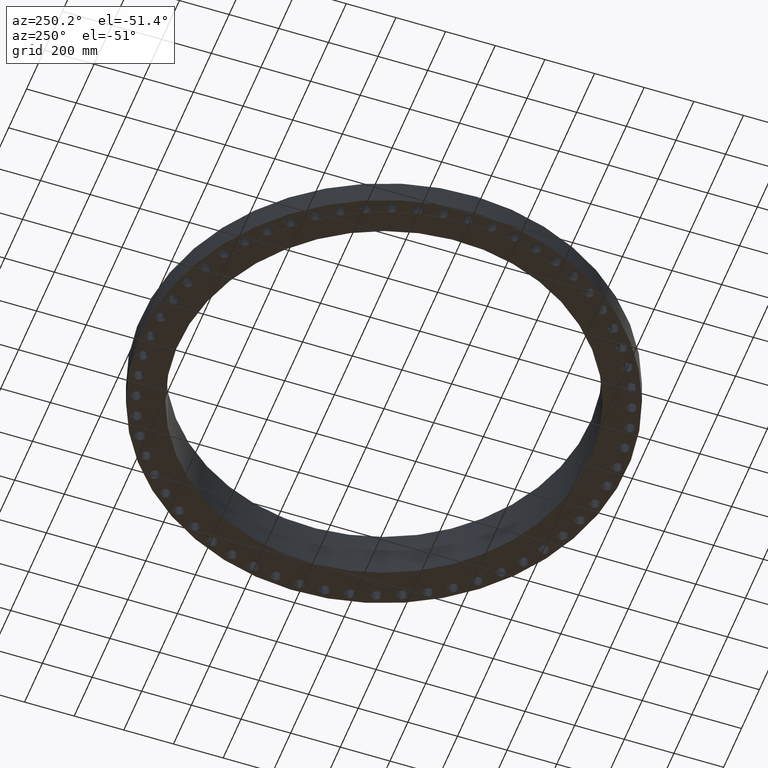
[diagram: clean part render]
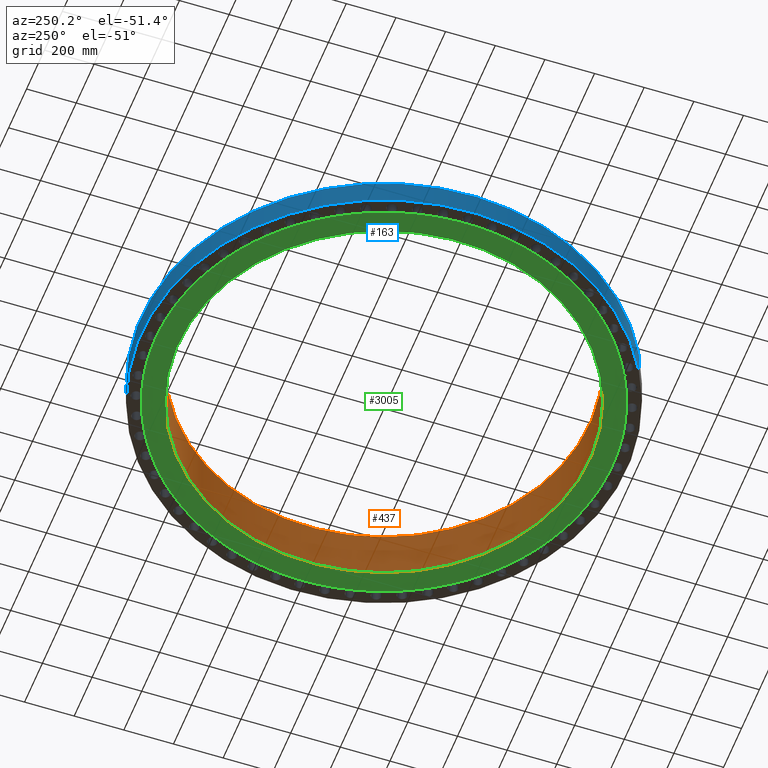
[diagram: same view with three faces highlighted in distinct colors, each labeled with its STEP entity id]
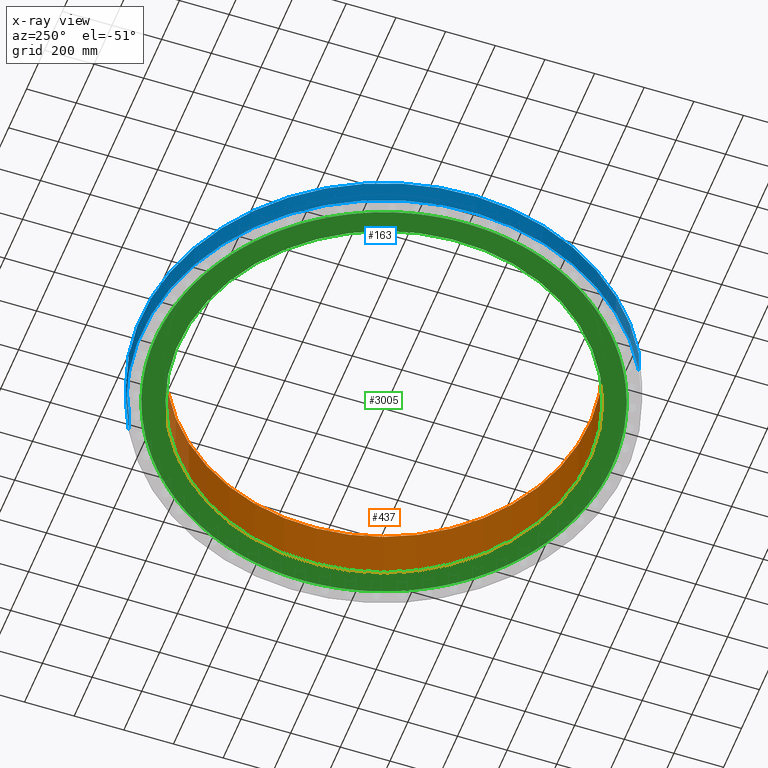
[diagram: x-ray of the same camera — body ghosted, the three highlighted faces saturated]
A machine part, auxiliary view with three faces highlighted in distinct colors.
The next image is the same camera in x-ray (body ghosted, the three faces saturated) — at least one of them is partly hidden behind the body in this view.
Their STEP definitions:

[orange] entity #437 — the highlighted cylindrical surface (partial cylindrical patch) has radius 828.675 mm, axis along (0, 0, -1).
#387=AXIS2_PLACEMENT_3D('Circle Axis2P3D',#385,#386,$) ;
#398=AXIS2_PLACEMENT_3D('Cylinder Axis2P3D',#395,#396,#397) ;
#428=AXIS2_PLACEMENT_3D('Circle Axis2P3D',#426,#427,$) ;
#380=CARTESIAN_POINT('Vertex',(-15.641258197,-28.6311310818,8.50000000003)) ;
#382=CARTESIAN_POINT('Vertex',(15.641258197,28.6311310818,8.50000000003)) ;
#385=CARTESIAN_POINT('Axis2P3D Location',(-1.34275792585E-014,-4.47585975282E-015,8.50000000003)) ;
#395=CARTESIAN_POINT('Axis2P3D Location',(0.,0.,4.26875000002)) ;
#400=CARTESIAN_POINT('Line Origine',(-15.641258197,-28.6311310818,4.21875000002)) ;
#404=CARTESIAN_POINT('Vertex',(-15.641258197,-28.6311310818,-0.0625000000003)) ;
#411=CARTESIAN_POINT('Vertex',(15.641258197,28.6311310818,-0.0625000000003)) ;
#414=CARTESIAN_POINT('Line Origine',(15.641258197,28.6311310818,4.21875000002)) ;
#426=CARTESIAN_POINT('Axis2P3D Location',(0.,0.,-0.0625000000003)) ;
#386=DIRECTION('Axis2P3D Direction',(0.,-0.,-0.0393700787402)) ;
#396=DIRECTION('Axis2P3D Direction',(0.,0.,-0.0393700787402)) ;
#397=DIRECTION('Axis2P3D XDirection',(0.0188750212049,0.0345504945626,0.)) ;
#401=DIRECTION('Vector Direction',(0.,0.,-0.0393700787402)) ;
#415=DIRECTION('Vector Direction',(0.,0.,-0.0393700787402)) ;
#427=DIRECTION('Axis2P3D Direction',(0.,0.,-0.0393700787402)) ;
#402=VECTOR('Line Direction',#401,0.0393700787402) ;
#416=VECTOR('Line Direction',#415,0.0393700787402) ;
#432=ORIENTED_EDGE('',*,*,#418,.T.) ;
#433=ORIENTED_EDGE('',*,*,#430,.T.) ;
#434=ORIENTED_EDGE('',*,*,#406,.F.) ;
#435=ORIENTED_EDGE('',*,*,#389,.F.) ;
#437=ADVANCED_FACE('PartBody',(#436),#399,.F.) ;
#388=CIRCLE('generated circle',#387,32.6250000001) ;
#429=CIRCLE('generated circle',#428,32.6250000001) ;
#399=CYLINDRICAL_SURFACE('generated cylinder',#398,32.6250000001) ;
#389=EDGE_CURVE('',#383,#381,#388,.T.) ;
#406=EDGE_CURVE('',#381,#405,#403,.T.) ;
#418=EDGE_CURVE('',#383,#412,#417,.T.) ;
#430=EDGE_CURVE('',#412,#405,#429,.T.) ;
#431=EDGE_LOOP('',(#432,#433,#434,#435)) ;
#436=FACE_OUTER_BOUND('',#431,.T.) ;
#403=LINE('Line',#400,#402) ;
#417=LINE('Line',#414,#416) ;
#381=VERTEX_POINT('',#380) ;
#383=VERTEX_POINT('',#382) ;
#405=VERTEX_POINT('',#404) ;
#412=VERTEX_POINT('',#411) ;

[blue] entity #163 — the highlighted cylindrical surface (partial cylindrical patch) has radius 977.9 mm, axis along (0, 0, -1).
#127=AXIS2_PLACEMENT_3D('Cylinder Axis2P3D',#124,#125,#126) ;
#131=AXIS2_PLACEMENT_3D('Circle Axis2P3D',#129,#130,$) ;
#147=AXIS2_PLACEMENT_3D('Circle Axis2P3D',#145,#146,$) ;
#124=CARTESIAN_POINT('Axis2P3D Location',(0.,0.,4.26875000002)) ;
#129=CARTESIAN_POINT('Axis2P3D Location',(0.,0.,4.47585975282E-015)) ;
#133=CARTESIAN_POINT('Vertex',(-18.4578832363,-33.7869286329,4.47585975282E-015)) ;
#135=CARTESIAN_POINT('Vertex',(18.4578832363,33.7869286329,4.47585975282E-015)) ;
#138=CARTESIAN_POINT('Line Origine',(-18.4578832363,-33.7869286329,2.00000000001)) ;
#142=CARTESIAN_POINT('Vertex',(-18.4578832363,-33.7869286329,4.00000000002)) ;
#145=CARTESIAN_POINT('Axis2P3D Location',(0.,0.,4.00000000002)) ;
#149=CARTESIAN_POINT('Vertex',(18.4578832363,33.7869286329,4.00000000002)) ;
#152=CARTESIAN_POINT('Line Origine',(18.4578832363,33.7869286329,2.00000000001)) ;
#125=DIRECTION('Axis2P3D Direction',(0.,0.,-0.0393700787402)) ;
#126=DIRECTION('Axis2P3D XDirection',(0.0188750212049,0.0345504945626,0.)) ;
#130=DIRECTION('Axis2P3D Direction',(0.,0.,-0.0393700787402)) ;
#139=DIRECTION('Vector Direction',(0.,0.,-0.0393700787402)) ;
#146=DIRECTION('Axis2P3D Direction',(0.,0.,-0.0393700787402)) ;
#153=DIRECTION('Vector Direction',(0.,0.,-0.0393700787402)) ;
#140=VECTOR('Line Direction',#139,0.0393700787402) ;
#154=VECTOR('Line Direction',#153,0.0393700787402) ;
#158=ORIENTED_EDGE('',*,*,#137,.F.) ;
#159=ORIENTED_EDGE('',*,*,#144,.T.) ;
#160=ORIENTED_EDGE('',*,*,#151,.T.) ;
#161=ORIENTED_EDGE('',*,*,#156,.F.) ;
#163=ADVANCED_FACE('PartBody',(#162),#128,.T.) ;
#132=CIRCLE('generated circle',#131,38.5000000002) ;
#148=CIRCLE('generated circle',#147,38.5000000002) ;
#128=CYLINDRICAL_SURFACE('generated cylinder',#127,38.5000000002) ;
#137=EDGE_CURVE('',#134,#136,#132,.T.) ;
#144=EDGE_CURVE('',#134,#143,#141,.F.) ;
#151=EDGE_CURVE('',#143,#150,#148,.T.) ;
#156=EDGE_CURVE('',#136,#150,#155,.F.) ;
#157=EDGE_LOOP('',(#158,#159,#160,#161)) ;
#162=FACE_OUTER_BOUND('',#157,.T.) ;
#141=LINE('Line',#138,#140) ;
#155=LINE('Line',#152,#154) ;
#134=VERTEX_POINT('',#133) ;
#136=VERTEX_POINT('',#135) ;
#143=VERTEX_POINT('',#142) ;
#150=VERTEX_POINT('',#149) ;

[green] entity #3005 — the highlighted planar face has unit normal (0, 0, -1).
#91=AXIS2_PLACEMENT_3D('Circle Axis2P3D',#89,#90,$) ;
#409=AXIS2_PLACEMENT_3D('Circle Axis2P3D',#407,#408,$) ;
#428=AXIS2_PLACEMENT_3D('Circle Axis2P3D',#426,#427,$) ;
#445=AXIS2_PLACEMENT_3D('Circle Axis2P3D',#443,#444,$) ;
#487=AXIS2_PLACEMENT_3D('Circle Axis2P3D',#485,#486,$) ;
#515=AXIS2_PLACEMENT_3D('Circle Axis2P3D',#513,#514,$) ;
#557=AXIS2_PLACEMENT_3D('Circle Axis2P3D',#555,#556,$) ;
#576=AXIS2_PLACEMENT_3D('Circle Axis2P3D',#574,#575,$) ;
#611=AXIS2_PLACEMENT_3D('Circle Axis2P3D',#609,#610,$) ;
#655=AXIS2_PLACEMENT_3D('Circle Axis2P3D',#653,#654,$) ;
#690=AXIS2_PLACEMENT_3D('Circle Axis2P3D',#688,#689,$) ;
#732=AXIS2_PLACEMENT_3D('Circle Axis2P3D',#730,#731,$) ;
#751=AXIS2_PLACEMENT_3D('Circle Axis2P3D',#749,#750,$) ;
#786=AXIS2_PLACEMENT_3D('Circle Axis2P3D',#784,#785,$) ;
#821=AXIS2_PLACEMENT_3D('Circle Axis2P3D',#819,#820,$) ;
#863=AXIS2_PLACEMENT_3D('Circle Axis2P3D',#861,#862,$) ;
#891=AXIS2_PLACEMENT_3D('Circle Axis2P3D',#889,#890,$) ;
#933=AXIS2_PLACEMENT_3D('Circle Axis2P3D',#931,#932,$) ;
#952=AXIS2_PLACEMENT_3D('Circle Axis2P3D',#950,#951,$) ;
#987=AXIS2_PLACEMENT_3D('Circle Axis2P3D',#985,#986,$) ;
#1022=AXIS2_PLACEMENT_3D('Circle Axis2P3D',#1020,#1021,$) ;
#1057=AXIS2_PLACEMENT_3D('Circle Axis2P3D',#1055,#1056,$) ;
#1092=AXIS2_PLACEMENT_3D('Circle Axis2P3D',#1090,#1091,$) ;
#1127=AXIS2_PLACEMENT_3D('Circle Axis2P3D',#1125,#1126,$) ;
#1162=AXIS2_PLACEMENT_3D('Circle Axis2P3D',#1160,#1161,$) ;
#1206=AXIS2_PLACEMENT_3D('Circle Axis2P3D',#1204,#1205,$) ;
#1241=AXIS2_PLACEMENT_3D('Circle Axis2P3D',#1239,#1240,$) ;
#1276=AXIS2_PLACEMENT_3D('Circle Axis2P3D',#1274,#1275,$) ;
#1311=AXIS2_PLACEMENT_3D('Circle Axis2P3D',#1309,#1310,$) ;
#1346=AXIS2_PLACEMENT_3D('Circle Axis2P3D',#1344,#1345,$) ;
#1381=AXIS2_PLACEMENT_3D('Circle Axis2P3D',#1379,#1380,$) ;
#1416=AXIS2_PLACEMENT_3D('Circle Axis2P3D',#1414,#1415,$) ;
#1442=AXIS2_PLACEMENT_3D('Circle Axis2P3D',#1440,#1441,$) ;
#1486=AXIS2_PLACEMENT_3D('Circle Axis2P3D',#1484,#1485,$) ;
#1512=AXIS2_PLACEMENT_3D('Circle Axis2P3D',#1510,#1511,$) ;
#1556=AXIS2_PLACEMENT_3D('Circle Axis2P3D',#1554,#1555,$) ;
#1582=AXIS2_PLACEMENT_3D('Circle Axis2P3D',#1580,#1581,$) ;
#1617=AXIS2_PLACEMENT_3D('Circle Axis2P3D',#1615,#1616,$) ;
#1652=AXIS2_PLACEMENT_3D('Circle Axis2P3D',#1650,#1651,$) ;
#1696=AXIS2_PLACEMENT_3D('Circle Axis2P3D',#1694,#1695,$) ;
#1738=AXIS2_PLACEMENT_3D('Circle Axis2P3D',#1736,#1737,$) ;
#1780=AXIS2_PLACEMENT_3D('Circle Axis2P3D',#1778,#1779,$) ;
#1792=AXIS2_PLACEMENT_3D('Circle Axis2P3D',#1790,#1791,$) ;
#1843=AXIS2_PLACEMENT_3D('Circle Axis2P3D',#1841,#1842,$) ;
#1878=AXIS2_PLACEMENT_3D('Circle Axis2P3D',#1876,#1877,$) ;
#1913=AXIS2_PLACEMENT_3D('Circle Axis2P3D',#1911,#1912,$) ;
#1932=AXIS2_PLACEMENT_3D('Circle Axis2P3D',#1930,#1931,$) ;
#1981=AXIS2_PLACEMENT_3D('Circle Axis2P3D',#1979,#1980,$) ;
#1993=AXIS2_PLACEMENT_3D('Circle Axis2P3D',#1991,#1992,$) ;
#2044=AXIS2_PLACEMENT_3D('Circle Axis2P3D',#2042,#2043,$) ;
#2079=AXIS2_PLACEMENT_3D('Circle Axis2P3D',#2077,#2078,$) ;
#2114=AXIS2_PLACEMENT_3D('Circle Axis2P3D',#2112,#2113,$) ;
#2149=AXIS2_PLACEMENT_3D('Circle Axis2P3D',#2147,#2148,$) ;
#2191=AXIS2_PLACEMENT_3D('Circle Axis2P3D',#2189,#2190,$) ;
#2226=AXIS2_PLACEMENT_3D('Circle Axis2P3D',#2224,#2225,$) ;
#2261=AXIS2_PLACEMENT_3D('Circle Axis2P3D',#2259,#2260,$) ;
#2296=AXIS2_PLACEMENT_3D('Circle Axis2P3D',#2294,#2295,$) ;
#2331=AXIS2_PLACEMENT_3D('Circle Axis2P3D',#2329,#2330,$) ;
#2366=AXIS2_PLACEMENT_3D('Circle Axis2P3D',#2364,#2365,$) ;
#2378=AXIS2_PLACEMENT_3D('Circle Axis2P3D',#2376,#2377,$) ;
#2429=AXIS2_PLACEMENT_3D('Circle Axis2P3D',#2427,#2428,$) ;
#2471=AXIS2_PLACEMENT_3D('Circle Axis2P3D',#2469,#2470,$) ;
#2490=AXIS2_PLACEMENT_3D('Circle Axis2P3D',#2488,#2489,$) ;
#2509=AXIS2_PLACEMENT_3D('Circle Axis2P3D',#2507,#2508,$) ;
#2544=AXIS2_PLACEMENT_3D('Circle Axis2P3D',#2542,#2543,$) ;
#2580=AXIS2_PLACEMENT_3D('Plane Axis2P3D',#2577,#2578,#2579) ;
#2584=AXIS2_PLACEMENT_3D('Circle Axis2P3D',#2582,#2583,$) ;
#2589=AXIS2_PLACEMENT_3D('Circle Axis2P3D',#2587,#2588,$) ;
#2594=AXIS2_PLACEMENT_3D('Circle Axis2P3D',#2592,#2593,$) ;
#2599=AXIS2_PLACEMENT_3D('Circle Axis2P3D',#2597,#2598,$) ;
#2604=AXIS2_PLACEMENT_3D('Circle Axis2P3D',#2602,#2603,$) ;
#2609=AXIS2_PLACEMENT_3D('Circle Axis2P3D',#2607,#2608,$) ;
#2614=AXIS2_PLACEMENT_3D('Circle Axis2P3D',#2612,#2613,$) ;
#2619=AXIS2_PLACEMENT_3D('Circle Axis2P3D',#2617,#2618,$) ;
#2624=AXIS2_PLACEMENT_3D('Circle Axis2P3D',#2622,#2623,$) ;
#2629=AXIS2_PLACEMENT_3D('Circle Axis2P3D',#2627,#2628,$) ;
#2634=AXIS2_PLACEMENT_3D('Circle Axis2P3D',#2632,#2633,$) ;
#2639=AXIS2_PLACEMENT_3D('Circle Axis2P3D',#2637,#2638,$) ;
#2644=AXIS2_PLACEMENT_3D('Circle Axis2P3D',#2642,#2643,$) ;
#2649=AXIS2_PLACEMENT_3D('Circle Axis2P3D',#2647,#2648,$) ;
#2654=AXIS2_PLACEMENT_3D('Circle Axis2P3D',#2652,#2653,$) ;
#2659=AXIS2_PLACEMENT_3D('Circle Axis2P3D',#2657,#2658,$) ;
#2664=AXIS2_PLACEMENT_3D('Circle Axis2P3D',#2662,#2663,$) ;
#2669=AXIS2_PLACEMENT_3D('Circle Axis2P3D',#2667,#2668,$) ;
#2674=AXIS2_PLACEMENT_3D('Circle Axis2P3D',#2672,#2673,$) ;
#2679=AXIS2_PLACEMENT_3D('Circle Axis2P3D',#2677,#2678,$) ;
#2684=AXIS2_PLACEMENT_3D('Circle Axis2P3D',#2682,#2683,$) ;
#2689=AXIS2_PLACEMENT_3D('Circle Axis2P3D',#2687,#2688,$) ;
#2694=AXIS2_PLACEMENT_3D('Circle Axis2P3D',#2692,#2693,$) ;
#2699=AXIS2_PLACEMENT_3D('Circle Axis2P3D',#2697,#2698,$) ;
#2704=AXIS2_PLACEMENT_3D('Circle Axis2P3D',#2702,#2703,$) ;
#2709=AXIS2_PLACEMENT_3D('Circle Axis2P3D',#2707,#2708,$) ;
#2714=AXIS2_PLACEMENT_3D('Circle Axis2P3D',#2712,#2713,$) ;
#2719=AXIS2_PLACEMENT_3D('Circle Axis2P3D',#2717,#2718,$) ;
#2724=AXIS2_PLACEMENT_3D('Circle Axis2P3D',#2722,#2723,$) ;
#2729=AXIS2_PLACEMENT_3D('Circle Axis2P3D',#2727,#2728,$) ;
#2734=AXIS2_PLACEMENT_3D('Circle Axis2P3D',#2732,#2733,$) ;
#2739=AXIS2_PLACEMENT_3D('Circle Axis2P3D',#2737,#2738,$) ;
#2744=AXIS2_PLACEMENT_3D('Circle Axis2P3D',#2742,#2743,$) ;
#2749=AXIS2_PLACEMENT_3D('Circle Axis2P3D',#2747,#2748,$) ;
#2754=AXIS2_PLACEMENT_3D('Circle Axis2P3D',#2752,#2753,$) ;
#2759=AXIS2_PLACEMENT_3D('Circle Axis2P3D',#2757,#2758,$) ;
#2764=AXIS2_PLACEMENT_3D('Circle Axis2P3D',#2762,#2763,$) ;
#2769=AXIS2_PLACEMENT_3D('Circle Axis2P3D',#2767,#2768,$) ;
#2774=AXIS2_PLACEMENT_3D('Circle Axis2P3D',#2772,#2773,$) ;
#2779=AXIS2_PLACEMENT_3D('Circle Axis2P3D',#2777,#2778,$) ;
#2784=AXIS2_PLACEMENT_3D('Circle Axis2P3D',#2782,#2783,$) ;
#2789=AXIS2_PLACEMENT_3D('Circle Axis2P3D',#2787,#2788,$) ;
#2794=AXIS2_PLACEMENT_3D('Circle Axis2P3D',#2792,#2793,$) ;
#2799=AXIS2_PLACEMENT_3D('Circle Axis2P3D',#2797,#2798,$) ;
#2804=AXIS2_PLACEMENT_3D('Circle Axis2P3D',#2802,#2803,$) ;
#2809=AXIS2_PLACEMENT_3D('Circle Axis2P3D',#2807,#2808,$) ;
#2814=AXIS2_PLACEMENT_3D('Circle Axis2P3D',#2812,#2813,$) ;
#2819=AXIS2_PLACEMENT_3D('Circle Axis2P3D',#2817,#2818,$) ;
#2824=AXIS2_PLACEMENT_3D('Circle Axis2P3D',#2822,#2823,$) ;
#2829=AXIS2_PLACEMENT_3D('Circle Axis2P3D',#2827,#2828,$) ;
#2834=AXIS2_PLACEMENT_3D('Circle Axis2P3D',#2832,#2833,$) ;
#2839=AXIS2_PLACEMENT_3D('Circle Axis2P3D',#2837,#2838,$) ;
#2844=AXIS2_PLACEMENT_3D('Circle Axis2P3D',#2842,#2843,$) ;
#2849=AXIS2_PLACEMENT_3D('Circle Axis2P3D',#2847,#2848,$) ;
#2854=AXIS2_PLACEMENT_3D('Circle Axis2P3D',#2852,#2853,$) ;
#2859=AXIS2_PLACEMENT_3D('Circle Axis2P3D',#2857,#2858,$) ;
#2864=AXIS2_PLACEMENT_3D('Circle Axis2P3D',#2862,#2863,$) ;
#2869=AXIS2_PLACEMENT_3D('Circle Axis2P3D',#2867,#2868,$) ;
#2874=AXIS2_PLACEMENT_3D('Circle Axis2P3D',#2872,#2873,$) ;
#86=CARTESIAN_POINT('Vertex',(36.1898902028,-0.0891466001767,-0.0625000000002)) ;
#89=CARTESIAN_POINT('Axis2P3D Location',(37.0000000001,0.,-0.0625000000002)) ;
#93=CARTESIAN_POINT('Vertex',(36.1898902028,0.0891466001766,-0.0625000000002)) ;
#404=CARTESIAN_POINT('Vertex',(-15.641258197,-28.6311310818,-0.0625000000003)) ;
#407=CARTESIAN_POINT('Axis2P3D Location',(0.,0.,-0.0625000000003)) ;
#411=CARTESIAN_POINT('Vertex',(15.641258197,28.6311310818,-0.0625000000003)) ;
#426=CARTESIAN_POINT('Axis2P3D Location',(0.,0.,-0.0625000000003)) ;
#443=CARTESIAN_POINT('Axis2P3D Location',(0.,0.,-0.0625000000002)) ;
#447=CARTESIAN_POINT('Vertex',(35.4175888931,7.43710272951,-0.0625000000002)) ;
#449=CARTESIAN_POINT('Vertex',(35.9823198406,3.8715318545,-0.0625000000003)) ;
#485=CARTESIAN_POINT('Axis2P3D Location',(0.,0.,-0.0625000000002)) ;
#489=CARTESIAN_POINT('Vertex',(36.0009565548,3.69421536296,-0.0625000000003)) ;
#510=CARTESIAN_POINT('Vertex',(35.3805196524,7.61149979566,-0.0625000000002)) ;
#513=CARTESIAN_POINT('Axis2P3D Location',(0.,0.,-0.0625000000002)) ;
#517=CARTESIAN_POINT('Vertex',(34.4461787159,11.0985076422,-0.0625000000002)) ;
#552=CARTESIAN_POINT('Vertex',(34.391083087,11.2680745522,-0.0625000000002)) ;
#555=CARTESIAN_POINT('Axis2P3D Location',(0.,0.,-0.0625000000002)) ;
#559=CARTESIAN_POINT('Vertex',(33.0973689963,14.6383149827,-0.0625000000002)) ;
#574=CARTESIAN_POINT('Axis2P3D Location',(0.,0.,-0.0625000000002)) ;
#578=CARTESIAN_POINT('Vertex',(31.3859375759,18.017741881,-0.0625000000002)) ;
#580=CARTESIAN_POINT('Vertex',(33.0248506185,14.801193926,-0.0625000000002)) ;
#609=CARTESIAN_POINT('Axis2P3D Location',(0.,0.,-0.0625000000002)) ;
#613=CARTESIAN_POINT('Vertex',(29.3306352555,21.1997626288,-0.0625000000002)) ;
#615=CARTESIAN_POINT('Vertex',(31.2967909757,18.1721483218,-0.0625000000002)) ;
#650=CARTESIAN_POINT('Vertex',(29.2258371418,21.3440048579,-0.0625000000002)) ;
#653=CARTESIAN_POINT('Axis2P3D Location',(0.,0.,-0.0625000000002)) ;
#657=CARTESIAN_POINT('Vertex',(26.9539803575,24.1495143409,-0.0625000000002)) ;
#685=CARTESIAN_POINT('Vertex',(26.8346789202,24.2820120101,-0.0625000000002)) ;
#688=CARTESIAN_POINT('Axis2P3D Location',(0.,0.,-0.0625000000002)) ;
#692=CARTESIAN_POINT('Vertex',(24.2820120101,26.8346789202,-0.0625000000002)) ;
#727=CARTESIAN_POINT('Vertex',(21.1997626288,29.3306352555,-0.0625000000002)) ;
#730=CARTESIAN_POINT('Axis2P3D Location',(0.,0.,-0.0625000000002)) ;
#734=CARTESIAN_POINT('Vertex',(18.1721483218,31.2967909757,-0.0625000000002)) ;
#749=CARTESIAN_POINT('Axis2P3D Location',(0.,0.,-0.0625000000002)) ;
#753=CARTESIAN_POINT('Vertex',(17.3504102422,31.7597129149,-0.0625000000002)) ;
#755=CARTESIAN_POINT('Vertex',(18.017741881,31.3859375759,-0.0625000000002)) ;
#784=CARTESIAN_POINT('Axis2P3D Location',(0.,0.,-0.0625000000002)) ;
#788=CARTESIAN_POINT('Vertex',(21.3440048579,29.2258371418,-0.0625000000002)) ;
#790=CARTESIAN_POINT('Vertex',(24.1495143409,26.9539803575,-0.0625000000002)) ;
#819=CARTESIAN_POINT('Axis2P3D Location',(0.,0.,-0.0625000000002)) ;
#823=CARTESIAN_POINT('Vertex',(11.2680745522,34.391083087,-0.0625000000002)) ;
#825=CARTESIAN_POINT('Vertex',(14.6383149827,33.0973689963,-0.0625000000002)) ;
#861=CARTESIAN_POINT('Axis2P3D Location',(0.,0.,-0.0625000000002)) ;
#865=CARTESIAN_POINT('Vertex',(14.801193926,33.0248506185,-0.0625000000002)) ;
#886=CARTESIAN_POINT('Vertex',(11.0985076422,34.4461787159,-0.0625000000002)) ;
#889=CARTESIAN_POINT('Axis2P3D Location',(0.,0.,-0.0625000000002)) ;
#893=CARTESIAN_POINT('Vertex',(7.61149979566,35.3805196524,-0.0625000000002)) ;
#928=CARTESIAN_POINT('Vertex',(7.43710272951,35.4175888931,-0.0625000000002)) ;
#931=CARTESIAN_POINT('Axis2P3D Location',(0.,0.,-0.0625000000002)) ;
#935=CARTESIAN_POINT('Vertex',(3.8715318545,35.9823198406,-0.0625000000002)) ;
#950=CARTESIAN_POINT('Axis2P3D Location',(0.,0.,-0.0625000000002)) ;
#954=CARTESIAN_POINT('Vertex',(0.0891466001763,36.1898902028,-0.0625000000002)) ;
#956=CARTESIAN_POINT('Vertex',(3.69421536296,36.0009565548,-0.0625000000002)) ;
#985=CARTESIAN_POINT('Axis2P3D Location',(0.,0.,-0.0625000000002)) ;
#989=CARTESIAN_POINT('Vertex',(-3.69421536296,36.0009565548,-0.0625000000002)) ;
#991=CARTESIAN_POINT('Vertex',(-0.0891466001762,36.1898902028,-0.0625000000002)) ;
#1020=CARTESIAN_POINT('Axis2P3D Location',(0.,0.,-0.0625000000002)) ;
#1024=CARTESIAN_POINT('Vertex',(-7.43710272951,35.4175888931,-0.0625000000002)) ;
#1026=CARTESIAN_POINT('Vertex',(-3.8715318545,35.9823198406,-0.0625000000002)) ;
#1055=CARTESIAN_POINT('Axis2P3D Location',(0.,0.,-0.0625000000002)) ;
#1059=CARTESIAN_POINT('Vertex',(-11.0985076422,34.4461787159,-0.0625000000002)) ;
#1061=CARTESIAN_POINT('Vertex',(-7.61149979566,35.3805196524,-0.0625000000002)) ;
#1090=CARTESIAN_POINT('Axis2P3D Location',(0.,0.,-0.0625000000002)) ;
#1094=CARTESIAN_POINT('Vertex',(-14.6383149827,33.0973689963,-0.0625000000002)) ;
#1096=CARTESIAN_POINT('Vertex',(-11.2680745522,34.391083087,-0.0625000000002)) ;
#1125=CARTESIAN_POINT('Axis2P3D Location',(0.,0.,-0.0625000000002)) ;
#1129=CARTESIAN_POINT('Vertex',(-18.017741881,31.3859375759,-0.0625000000002)) ;
#1131=CARTESIAN_POINT('Vertex',(-14.801193926,33.0248506185,-0.0625000000002)) ;
#1160=CARTESIAN_POINT('Axis2P3D Location',(0.,0.,-0.0625000000002)) ;
#1164=CARTESIAN_POINT('Vertex',(-21.1997626288,29.3306352555,-0.0625000000002)) ;
#1166=CARTESIAN_POINT('Vertex',(-18.1721483218,31.2967909757,-0.0625000000002)) ;
#1201=CARTESIAN_POINT('Vertex',(-21.3440048579,29.2258371418,-0.0625000000002)) ;
#1204=CARTESIAN_POINT('Axis2P3D Location',(0.,0.,-0.0625000000002)) ;
#1208=CARTESIAN_POINT('Vertex',(-24.1495143409,26.9539803575,-0.0625000000002)) ;
#1236=CARTESIAN_POINT('Vertex',(-24.2820120101,26.8346789202,-0.0625000000002)) ;
#1239=CARTESIAN_POINT('Axis2P3D Location',(0.,0.,-0.0625000000002)) ;
#1243=CARTESIAN_POINT('Vertex',(-26.8346789202,24.2820120101,-0.0625000000002)) ;
#1271=CARTESIAN_POINT('Vertex',(-26.9539803575,24.1495143409,-0.0625000000002)) ;
#1274=CARTESIAN_POINT('Axis2P3D Location',(0.,0.,-0.0625000000002)) ;
#1278=CARTESIAN_POINT('Vertex',(-29.2258371418,21.3440048579,-0.0625000000003)) ;
#1306=CARTESIAN_POINT('Vertex',(-29.3306352555,21.1997626288,-0.0625000000003)) ;
#1309=CARTESIAN_POINT('Axis2P3D Location',(0.,0.,-0.0625000000002)) ;
#1313=CARTESIAN_POINT('Vertex',(-31.2967909757,18.1721483218,-0.0625000000002)) ;
#1341=CARTESIAN_POINT('Vertex',(-31.3859375759,18.017741881,-0.0625000000002)) ;
#1344=CARTESIAN_POINT('Axis2P3D Location',(0.,0.,-0.0625000000002)) ;
#1348=CARTESIAN_POINT('Vertex',(-33.0248506185,14.801193926,-0.0625000000003)) ;
#1376=CARTESIAN_POINT('Vertex',(-33.0973689963,14.6383149827,-0.0625000000003)) ;
#1379=CARTESIAN_POINT('Axis2P3D Location',(0.,0.,-0.0625000000002)) ;
#1383=CARTESIAN_POINT('Vertex',(-34.391083087,11.2680745522,-0.0625000000002)) ;
#1411=CARTESIAN_POINT('Vertex',(-34.4461787159,11.0985076422,-0.0625000000002)) ;
#1414=CARTESIAN_POINT('Axis2P3D Location',(0.,0.,-0.0625000000002)) ;
#1418=CARTESIAN_POINT('Vertex',(-35.3805196524,7.61149979566,-0.0625000000002)) ;
#1440=CARTESIAN_POINT('Axis2P3D Location',(0.,0.,-0.0625000000002)) ;
#1444=CARTESIAN_POINT('Vertex',(-35.9823198406,3.8715318545,-0.0625000000003)) ;
#1446=CARTESIAN_POINT('Vertex',(-35.4175888931,7.43710272951,-0.0625000000002)) ;
#1481=CARTESIAN_POINT('Vertex',(-36.0009565548,3.69421536296,-0.0625000000003)) ;
#1484=CARTESIAN_POINT('Axis2P3D Location',(0.,0.,-0.0625000000002)) ;
#1488=CARTESIAN_POINT('Vertex',(-36.1898902028,0.0891466001763,-0.0625000000002)) ;
#1510=CARTESIAN_POINT('Axis2P3D Location',(0.,0.,-0.0625000000002)) ;
#1514=CARTESIAN_POINT('Vertex',(-36.0009565548,-3.69421536296,-0.0625000000002)) ;
#1516=CARTESIAN_POINT('Vertex',(-36.1898902028,-0.0891466001762,-0.0625000000002)) ;
#1551=CARTESIAN_POINT('Vertex',(-35.9823198406,-3.8715318545,-0.0625000000002)) ;
#1554=CARTESIAN_POINT('Axis2P3D Location',(0.,0.,-0.0625000000002)) ;
#1558=CARTESIAN_POINT('Vertex',(-35.4175888931,-7.43710272951,-0.0625000000002)) ;
#1580=CARTESIAN_POINT('Axis2P3D Location',(0.,0.,-0.0625000000002)) ;
#1584=CARTESIAN_POINT('Vertex',(-31.3859375759,-18.017741881,-0.0625000000002)) ;
#1586=CARTESIAN_POINT('Vertex',(-33.0248506185,-14.801193926,-0.0625000000002)) ;
#1615=CARTESIAN_POINT('Axis2P3D Location',(0.,0.,-0.0625000000002)) ;
#1619=CARTESIAN_POINT('Vertex',(-29.3306352555,-21.1997626288,-0.0625000000002)) ;
#1621=CARTESIAN_POINT('Vertex',(-31.2967909757,-18.1721483218,-0.0625000000002)) ;
#1650=CARTESIAN_POINT('Axis2P3D Location',(0.,0.,-0.0625000000002)) ;
#1654=CARTESIAN_POINT('Vertex',(-26.9539803575,-24.1495143409,-0.0625000000002)) ;
#1656=CARTESIAN_POINT('Vertex',(-29.2258371418,-21.3440048579,-0.0625000000002)) ;
#1691=CARTESIAN_POINT('Vertex',(-26.8346789202,-24.2820120101,-0.0625000000002)) ;
#1694=CARTESIAN_POINT('Axis2P3D Location',(0.,0.,-0.0625000000002)) ;
#1698=CARTESIAN_POINT('Vertex',(-24.2820120101,-26.8346789202,-0.0625000000002)) ;
#1733=CARTESIAN_POINT('Vertex',(-24.1495143409,-26.9539803575,-0.0625000000002)) ;
#1736=CARTESIAN_POINT('Axis2P3D Location',(0.,0.,-0.0625000000002)) ;
#1740=CARTESIAN_POINT('Vertex',(-21.3440048579,-29.2258371418,-0.0625000000003)) ;
#1761=CARTESIAN_POINT('Vertex',(-18.1721483218,-31.2967909757,-0.0625000000003)) ;
#1775=CARTESIAN_POINT('Vertex',(-21.1997626288,-29.3306352555,-0.0625000000003)) ;
#1778=CARTESIAN_POINT('Axis2P3D Location',(0.,0.,-0.0625000000002)) ;
#1790=CARTESIAN_POINT('Axis2P3D Location',(0.,0.,-0.0625000000002)) ;
#1794=CARTESIAN_POINT('Vertex',(-17.3504102422,-31.7597129149,-0.0625000000002)) ;
#1796=CARTESIAN_POINT('Vertex',(-18.017741881,-31.3859375759,-0.0625000000003)) ;
#1838=CARTESIAN_POINT('Vertex',(-34.391083087,-11.2680745522,-0.0625000000002)) ;
#1841=CARTESIAN_POINT('Axis2P3D Location',(0.,0.,-0.0625000000002)) ;
#1845=CARTESIAN_POINT('Vertex',(-33.0973689963,-14.6383149827,-0.0625000000002)) ;
#1873=CARTESIAN_POINT('Vertex',(-35.3805196524,-7.61149979566,-0.0625000000002)) ;
#1876=CARTESIAN_POINT('Axis2P3D Location',(0.,0.,-0.0625000000002)) ;
#1880=CARTESIAN_POINT('Vertex',(-34.4461787159,-11.0985076422,-0.0625000000002)) ;
#1908=CARTESIAN_POINT('Vertex',(35.4175888931,-7.43710272951,-0.0625000000002)) ;
#1911=CARTESIAN_POINT('Axis2P3D Location',(0.,0.,-0.0625000000002)) ;
#1915=CARTESIAN_POINT('Vertex',(35.9823198406,-3.8715318545,-0.0625000000003)) ;
#1930=CARTESIAN_POINT('Axis2P3D Location',(0.,0.,-0.0625000000002)) ;
#1934=CARTESIAN_POINT('Vertex',(36.0009565548,-3.69421536296,-0.0625000000003)) ;
#1962=CARTESIAN_POINT('Vertex',(35.3805196524,-7.61149979566,-0.0625000000002)) ;
#1976=CARTESIAN_POINT('Vertex',(34.4461787159,-11.0985076422,-0.0625000000003)) ;
#1979=CARTESIAN_POINT('Axis2P3D Location',(0.,0.,-0.0625000000002)) ;
#1991=CARTESIAN_POINT('Axis2P3D Location',(0.,0.,-0.0625000000002)) ;
#1995=CARTESIAN_POINT('Vertex',(34.391083087,-11.2680745522,-0.0625000000003)) ;
#1997=CARTESIAN_POINT('Vertex',(33.0973689963,-14.6383149827,-0.0625000000003)) ;
#2039=CARTESIAN_POINT('Vertex',(31.3859375759,-18.017741881,-0.0625000000002)) ;
#2042=CARTESIAN_POINT('Axis2P3D Location',(0.,0.,-0.0625000000002)) ;
#2046=CARTESIAN_POINT('Vertex',(33.0248506185,-14.801193926,-0.0625000000003)) ;
#2074=CARTESIAN_POINT('Vertex',(29.3306352555,-21.1997626288,-0.0625000000002)) ;
#2077=CARTESIAN_POINT('Axis2P3D Location',(0.,0.,-0.0625000000002)) ;
#2081=CARTESIAN_POINT('Vertex',(31.2967909757,-18.1721483218,-0.0625000000002)) ;
#2109=CARTESIAN_POINT('Vertex',(26.9539803575,-24.1495143409,-0.0625000000002)) ;
#2112=CARTESIAN_POINT('Axis2P3D Location',(0.,0.,-0.0625000000002)) ;
#2116=CARTESIAN_POINT('Vertex',(29.2258371418,-21.3440048579,-0.0625000000002)) ;
#2144=CARTESIAN_POINT('Vertex',(24.2820120101,-26.8346789202,-0.0625000000002)) ;
#2147=CARTESIAN_POINT('Axis2P3D Location',(0.,0.,-0.0625000000002)) ;
#2151=CARTESIAN_POINT('Vertex',(26.8346789202,-24.2820120101,-0.0625000000002)) ;
#2172=CARTESIAN_POINT('Vertex',(24.1495143409,-26.9539803575,-0.0625000000002)) ;
#2186=CARTESIAN_POINT('Vertex',(21.3440048579,-29.2258371418,-0.0625000000002)) ;
#2189=CARTESIAN_POINT('Axis2P3D Location',(0.,0.,-0.0625000000002)) ;
#2207=CARTESIAN_POINT('Vertex',(21.1997626288,-29.3306352555,-0.0625000000002)) ;
#2221=CARTESIAN_POINT('Vertex',(18.1721483218,-31.2967909757,-0.0625000000002)) ;
#2224=CARTESIAN_POINT('Axis2P3D Location',(0.,0.,-0.0625000000002)) ;
#2242=CARTESIAN_POINT('Vertex',(18.017741881,-31.3859375759,-0.0625000000002)) ;
#2256=CARTESIAN_POINT('Vertex',(14.801193926,-33.0248506185,-0.0625000000003)) ;
#2259=CARTESIAN_POINT('Axis2P3D Location',(0.,0.,-0.0625000000002)) ;
#2277=CARTESIAN_POINT('Vertex',(14.6383149827,-33.0973689963,-0.0625000000003)) ;
#2291=CARTESIAN_POINT('Vertex',(11.2680745522,-34.391083087,-0.0625000000003)) ;
#2294=CARTESIAN_POINT('Axis2P3D Location',(0.,0.,-0.0625000000002)) ;
#2312=CARTESIAN_POINT('Vertex',(11.0985076422,-34.4461787159,-0.0625000000003)) ;
#2326=CARTESIAN_POINT('Vertex',(7.61149979566,-35.3805196524,-0.0625000000002)) ;
#2329=CARTESIAN_POINT('Axis2P3D Location',(0.,0.,-0.0625000000002)) ;
#2347=CARTESIAN_POINT('Vertex',(7.43710272951,-35.4175888931,-0.0625000000002)) ;
#2361=CARTESIAN_POINT('Vertex',(3.8715318545,-35.9823198406,-0.0625000000003)) ;
#2364=CARTESIAN_POINT('Axis2P3D Location',(0.,0.,-0.0625000000002)) ;
#2376=CARTESIAN_POINT('Axis2P3D Location',(0.,0.,-0.0625000000002)) ;
#2380=CARTESIAN_POINT('Vertex',(-0.0891466001763,-36.1898902028,-0.0625000000002)) ;
#2382=CARTESIAN_POINT('Vertex',(-3.69421536296,-36.0009565548,-0.0625000000003)) ;
#2424=CARTESIAN_POINT('Vertex',(-7.43710272951,-35.4175888931,-0.0625000000002)) ;
#2427=CARTESIAN_POINT('Axis2P3D Location',(0.,0.,-0.0625000000002)) ;
#2431=CARTESIAN_POINT('Vertex',(-3.8715318545,-35.9823198406,-0.0625000000003)) ;
#2452=CARTESIAN_POINT('Vertex',(-7.61149979566,-35.3805196524,-0.0625000000002)) ;
#2466=CARTESIAN_POINT('Vertex',(-11.0985076422,-34.4461787159,-0.0625000000002)) ;
#2469=CARTESIAN_POINT('Axis2P3D Location',(0.,0.,-0.0625000000002)) ;
#2488=CARTESIAN_POINT('Axis2P3D Location',(0.,0.,-0.0625000000002)) ;
#2492=CARTESIAN_POINT('Vertex',(-14.801193926,-33.0248506185,-0.0625000000002)) ;
#2507=CARTESIAN_POINT('Axis2P3D Location',(0.,0.,-0.0625000000002)) ;
#2511=CARTESIAN_POINT('Vertex',(-11.2680745522,-34.391083087,-0.0625000000002)) ;
#2513=CARTESIAN_POINT('Vertex',(-14.6383149827,-33.0973689963,-0.0625000000002)) ;
#2542=CARTESIAN_POINT('Axis2P3D Location',(0.,0.,-0.0625000000002)) ;
#2546=CARTESIAN_POINT('Vertex',(3.69421536296,-36.0009565548,-0.0625000000003)) ;
#2548=CARTESIAN_POINT('Vertex',(0.0891466001763,-36.1898902028,-0.0625000000002)) ;
#2577=CARTESIAN_POINT('Axis2P3D Location',(0.,32.6250000001,-0.0625000000003)) ;
#2582=CARTESIAN_POINT('Axis2P3D Location',(36.1914612273,-7.69273256029,-0.0625000000003)) ;
#2587=CARTESIAN_POINT('Axis2P3D Location',(35.1890911031,-11.4336287919,-0.0625000000003)) ;
#2592=CARTESIAN_POINT('Axis2P3D Location',(33.8011819329,-15.0492557939,-0.0625000000003)) ;
#2597=CARTESIAN_POINT('Axis2P3D Location',(32.0429399402,-18.5000000001,-0.0625000000003)) ;
#2602=CARTESIAN_POINT('Axis2P3D Location',(29.933628792,-21.7480543349,-0.0625000000003)) ;
#2607=CARTESIAN_POINT('Axis2P3D Location',(27.4963585428,-24.7578324354,-0.0625000000003)) ;
#2612=CARTESIAN_POINT('Axis2P3D Location',(24.7578324354,-27.4963585428,-0.0625000000003)) ;
#2617=CARTESIAN_POINT('Axis2P3D Location',(21.7480543349,-29.933628792,-0.0625000000003)) ;
#2622=CARTESIAN_POINT('Axis2P3D Location',(18.5000000001,-32.0429399402,-0.0625000000003)) ;
#2627=CARTESIAN_POINT('Axis2P3D Location',(15.0492557939,-33.8011819329,-0.0625000000003)) ;
#2632=CARTESIAN_POINT('Axis2P3D Location',(11.4336287919,-35.1890911031,-0.0625000000003)) ;
#2637=CARTESIAN_POINT('Axis2P3D Location',(7.69273256029,-36.1914612273,-0.0625000000003)) ;
#2642=CARTESIAN_POINT('Axis2P3D Location',(3.86755314092,-36.7973101288,-0.0625000000003)) ;
#2647=CARTESIAN_POINT('Axis2P3D Location',(2.08057543197E-015,-37.0000000001,-0.0625000000003)) ;
#2652=CARTESIAN_POINT('Axis2P3D Location',(-3.86755314092,-36.7973101288,-0.0625000000003)) ;
#2657=CARTESIAN_POINT('Axis2P3D Location',(-7.69273256029,-36.1914612273,-0.0625000000003)) ;
#2662=CARTESIAN_POINT('Axis2P3D Location',(-11.4336287919,-35.1890911031,-0.0625000000003)) ;
#2667=CARTESIAN_POINT('Axis2P3D Location',(-15.0492557939,-33.8011819329,-0.0625000000003)) ;
#2672=CARTESIAN_POINT('Axis2P3D Location',(-18.5000000001,-32.0429399402,-0.0625000000003)) ;
#2677=CARTESIAN_POINT('Axis2P3D Location',(-21.7480543349,-29.933628792,-0.0625000000003)) ;
#2682=CARTESIAN_POINT('Axis2P3D Location',(-24.7578324354,-27.4963585428,-0.0625000000003)) ;
#2687=CARTESIAN_POINT('Axis2P3D Location',(-27.4963585428,-24.7578324354,-0.0625000000003)) ;
#2692=CARTESIAN_POINT('Axis2P3D Location',(-29.933628792,-21.7480543349,-0.0625000000003)) ;
#2697=CARTESIAN_POINT('Axis2P3D Location',(-32.0429399402,-18.5000000001,-0.0625000000003)) ;
#2702=CARTESIAN_POINT('Axis2P3D Location',(-33.8011819329,-15.0492557939,-0.0625000000003)) ;
#2707=CARTESIAN_POINT('Axis2P3D Location',(-35.1890911031,-11.4336287919,-0.0625000000003)) ;
#2712=CARTESIAN_POINT('Axis2P3D Location',(-36.1914612273,-7.69273256029,-0.0625000000003)) ;
#2717=CARTESIAN_POINT('Axis2P3D Location',(-36.7973101288,-3.86755314092,-0.0625000000003)) ;
#2722=CARTESIAN_POINT('Axis2P3D Location',(-37.0000000001,-4.47585975282E-015,-0.0625000000003)) ;
#2727=CARTESIAN_POINT('Axis2P3D Location',(-36.7973101288,3.86755314092,-0.0625000000003)) ;
#2732=CARTESIAN_POINT('Axis2P3D Location',(-36.1914612273,7.69273256029,-0.0625000000003)) ;
#2737=CARTESIAN_POINT('Axis2P3D Location',(-35.1890911031,11.4336287919,-0.0625000000003)) ;
#2742=CARTESIAN_POINT('Axis2P3D Location',(-33.8011819329,15.0492557939,-0.0625000000003)) ;
#2747=CARTESIAN_POINT('Axis2P3D Location',(-32.0429399402,18.5000000001,-0.0625000000003)) ;
#2752=CARTESIAN_POINT('Axis2P3D Location',(-29.933628792,21.7480543349,-0.0625000000003)) ;
#2757=CARTESIAN_POINT('Axis2P3D Location',(-27.4963585428,24.7578324354,-0.0625000000003)) ;
#2762=CARTESIAN_POINT('Axis2P3D Location',(-24.7578324354,27.4963585428,-0.0625000000003)) ;
#2767=CARTESIAN_POINT('Axis2P3D Location',(-21.7480543349,29.933628792,-0.0625000000003)) ;
#2772=CARTESIAN_POINT('Axis2P3D Location',(-18.5000000001,32.0429399402,-0.0625000000003)) ;
#2777=CARTESIAN_POINT('Axis2P3D Location',(-15.0492557939,33.8011819329,-0.0625000000003)) ;
#2782=CARTESIAN_POINT('Axis2P3D Location',(-11.4336287919,35.1890911031,-0.0625000000003)) ;
#2787=CARTESIAN_POINT('Axis2P3D Location',(-7.69273256029,36.1914612273,-0.0625000000003)) ;
#2792=CARTESIAN_POINT('Axis2P3D Location',(-3.86755314092,36.7973101288,-0.0625000000003)) ;
#2797=CARTESIAN_POINT('Axis2P3D Location',(-6.52146753048E-015,37.0000000001,-0.0625000000003)) ;
#2802=CARTESIAN_POINT('Axis2P3D Location',(3.86755314092,36.7973101288,-0.0625000000003)) ;
#2807=CARTESIAN_POINT('Axis2P3D Location',(7.69273256029,36.1914612273,-0.0625000000003)) ;
#2812=CARTESIAN_POINT('Axis2P3D Location',(11.4336287919,35.1890911031,-0.0625000000003)) ;
#2817=CARTESIAN_POINT('Axis2P3D Location',(15.0492557939,33.8011819329,-0.0625000000003)) ;
#2822=CARTESIAN_POINT('Axis2P3D Location',(18.5000000001,32.0429399402,-0.0625000000003)) ;
#2827=CARTESIAN_POINT('Axis2P3D Location',(21.7480543349,29.933628792,-0.0625000000003)) ;
#2832=CARTESIAN_POINT('Axis2P3D Location',(24.7578324354,27.4963585428,-0.0625000000003)) ;
#2837=CARTESIAN_POINT('Axis2P3D Location',(27.4963585428,24.7578324354,-0.0625000000003)) ;
#2842=CARTESIAN_POINT('Axis2P3D Location',(29.933628792,21.7480543349,-0.0625000000003)) ;
#2847=CARTESIAN_POINT('Axis2P3D Location',(32.0429399402,18.5000000001,-0.0625000000003)) ;
#2852=CARTESIAN_POINT('Axis2P3D Location',(33.8011819329,15.0492557939,-0.0625000000003)) ;
#2857=CARTESIAN_POINT('Axis2P3D Location',(35.1890911031,11.4336287919,-0.0625000000003)) ;
#2862=CARTESIAN_POINT('Axis2P3D Location',(36.1914612273,7.69273256029,-0.0625000000003)) ;
#2867=CARTESIAN_POINT('Axis2P3D Location',(36.7973101288,3.86755314092,-0.0625000000003)) ;
#2872=CARTESIAN_POINT('Axis2P3D Location',(36.7973101288,-3.86755314092,-0.0625000000003)) ;
#90=DIRECTION('Axis2P3D Direction',(0.,-0.,-0.0393700787402)) ;
#408=DIRECTION('Axis2P3D Direction',(0.,0.,-0.0393700787402)) ;
#427=DIRECTION('Axis2P3D Direction',(0.,0.,-0.0393700787402)) ;
#444=DIRECTION('Axis2P3D Direction',(0.,0.,-0.0393700787402)) ;
#486=DIRECTION('Axis2P3D Direction',(0.,0.,-0.0393700787402)) ;
#514=DIRECTION('Axis2P3D Direction',(0.,0.,-0.0393700787402)) ;
#556=DIRECTION('Axis2P3D Direction',(0.,0.,-0.0393700787402)) ;
#575=DIRECTION('Axis2P3D Direction',(0.,0.,-0.0393700787402)) ;
#610=DIRECTION('Axis2P3D Direction',(0.,0.,-0.0393700787402)) ;
#654=DIRECTION('Axis2P3D Direction',(0.,0.,-0.0393700787402)) ;
#689=DIRECTION('Axis2P3D Direction',(0.,0.,-0.0393700787402)) ;
#731=DIRECTION('Axis2P3D Direction',(0.,0.,-0.0393700787402)) ;
#750=DIRECTION('Axis2P3D Direction',(0.,0.,-0.0393700787402)) ;
#785=DIRECTION('Axis2P3D Direction',(0.,0.,-0.0393700787402)) ;
#820=DIRECTION('Axis2P3D Direction',(0.,0.,-0.0393700787402)) ;
#862=DIRECTION('Axis2P3D Direction',(0.,0.,-0.0393700787402)) ;
#890=DIRECTION('Axis2P3D Direction',(0.,0.,-0.0393700787402)) ;
#932=DIRECTION('Axis2P3D Direction',(0.,0.,-0.0393700787402)) ;
#951=DIRECTION('Axis2P3D Direction',(0.,0.,-0.0393700787402)) ;
#986=DIRECTION('Axis2P3D Direction',(0.,0.,-0.0393700787402)) ;
#1021=DIRECTION('Axis2P3D Direction',(0.,0.,-0.0393700787402)) ;
#1056=DIRECTION('Axis2P3D Direction',(0.,0.,-0.0393700787402)) ;
#1091=DIRECTION('Axis2P3D Direction',(0.,0.,-0.0393700787402)) ;
#1126=DIRECTION('Axis2P3D Direction',(0.,0.,-0.0393700787402)) ;
#1161=DIRECTION('Axis2P3D Direction',(0.,0.,-0.0393700787402)) ;
#1205=DIRECTION('Axis2P3D Direction',(0.,0.,-0.0393700787402)) ;
#1240=DIRECTION('Axis2P3D Direction',(0.,0.,-0.0393700787402)) ;
#1275=DIRECTION('Axis2P3D Direction',(0.,0.,-0.0393700787402)) ;
#1310=DIRECTION('Axis2P3D Direction',(0.,0.,-0.0393700787402)) ;
#1345=DIRECTION('Axis2P3D Direction',(0.,0.,-0.0393700787402)) ;
#1380=DIRECTION('Axis2P3D Direction',(0.,0.,-0.0393700787402)) ;
#1415=DIRECTION('Axis2P3D Direction',(0.,0.,-0.0393700787402)) ;
#1441=DIRECTION('Axis2P3D Direction',(0.,0.,-0.0393700787402)) ;
#1485=DIRECTION('Axis2P3D Direction',(0.,0.,-0.0393700787402)) ;
#1511=DIRECTION('Axis2P3D Direction',(0.,0.,-0.0393700787402)) ;
#1555=DIRECTION('Axis2P3D Direction',(0.,0.,-0.0393700787402)) ;
#1581=DIRECTION('Axis2P3D Direction',(0.,0.,-0.0393700787402)) ;
#1616=DIRECTION('Axis2P3D Direction',(0.,0.,-0.0393700787402)) ;
#1651=DIRECTION('Axis2P3D Direction',(0.,0.,-0.0393700787402)) ;
#1695=DIRECTION('Axis2P3D Direction',(0.,0.,-0.0393700787402)) ;
#1737=DIRECTION('Axis2P3D Direction',(0.,0.,-0.0393700787402)) ;
#1779=DIRECTION('Axis2P3D Direction',(0.,0.,-0.0393700787402)) ;
#1791=DIRECTION('Axis2P3D Direction',(0.,0.,-0.0393700787402)) ;
#1842=DIRECTION('Axis2P3D Direction',(0.,0.,-0.0393700787402)) ;
#1877=DIRECTION('Axis2P3D Direction',(0.,0.,-0.0393700787402)) ;
#1912=DIRECTION('Axis2P3D Direction',(0.,0.,-0.0393700787402)) ;
#1931=DIRECTION('Axis2P3D Direction',(0.,0.,-0.0393700787402)) ;
#1980=DIRECTION('Axis2P3D Direction',(0.,0.,-0.0393700787402)) ;
#1992=DIRECTION('Axis2P3D Direction',(0.,0.,-0.0393700787402)) ;
#2043=DIRECTION('Axis2P3D Direction',(0.,0.,-0.0393700787402)) ;
#2078=DIRECTION('Axis2P3D Direction',(0.,0.,-0.0393700787402)) ;
#2113=DIRECTION('Axis2P3D Direction',(0.,0.,-0.0393700787402)) ;
#2148=DIRECTION('Axis2P3D Direction',(0.,0.,-0.0393700787402)) ;
#2190=DIRECTION('Axis2P3D Direction',(0.,0.,-0.0393700787402)) ;
#2225=DIRECTION('Axis2P3D Direction',(0.,0.,-0.0393700787402)) ;
#2260=DIRECTION('Axis2P3D Direction',(0.,0.,-0.0393700787402)) ;
#2295=DIRECTION('Axis2P3D Direction',(0.,0.,-0.0393700787402)) ;
#2330=DIRECTION('Axis2P3D Direction',(0.,0.,-0.0393700787402)) ;
#2365=DIRECTION('Axis2P3D Direction',(0.,0.,-0.0393700787402)) ;
#2377=DIRECTION('Axis2P3D Direction',(0.,0.,-0.0393700787402)) ;
#2428=DIRECTION('Axis2P3D Direction',(0.,0.,-0.0393700787402)) ;
#2470=DIRECTION('Axis2P3D Direction',(0.,0.,-0.0393700787402)) ;
#2489=DIRECTION('Axis2P3D Direction',(0.,0.,-0.0393700787402)) ;
#2508=DIRECTION('Axis2P3D Direction',(0.,0.,-0.0393700787402)) ;
#2543=DIRECTION('Axis2P3D Direction',(0.,0.,-0.0393700787402)) ;
#2578=DIRECTION('Axis2P3D Direction',(0.,0.,-0.0393700787402)) ;
#2579=DIRECTION('Axis2P3D XDirection',(0.0393700787402,0.,0.)) ;
#2583=DIRECTION('Axis2P3D Direction',(0.,0.,-0.0393700787402)) ;
#2588=DIRECTION('Axis2P3D Direction',(0.,0.,-0.0393700787402)) ;
#2593=DIRECTION('Axis2P3D Direction',(0.,0.,-0.0393700787402)) ;
#2598=DIRECTION('Axis2P3D Direction',(0.,0.,-0.0393700787402)) ;
#2603=DIRECTION('Axis2P3D Direction',(0.,0.,-0.0393700787402)) ;
#2608=DIRECTION('Axis2P3D Direction',(0.,0.,-0.0393700787402)) ;
#2613=DIRECTION('Axis2P3D Direction',(0.,0.,-0.0393700787402)) ;
#2618=DIRECTION('Axis2P3D Direction',(0.,0.,-0.0393700787402)) ;
#2623=DIRECTION('Axis2P3D Direction',(0.,0.,-0.0393700787402)) ;
#2628=DIRECTION('Axis2P3D Direction',(0.,0.,-0.0393700787402)) ;
#2633=DIRECTION('Axis2P3D Direction',(0.,0.,-0.0393700787402)) ;
#2638=DIRECTION('Axis2P3D Direction',(0.,0.,-0.0393700787402)) ;
#2643=DIRECTION('Axis2P3D Direction',(0.,0.,-0.0393700787402)) ;
#2648=DIRECTION('Axis2P3D Direction',(0.,0.,-0.0393700787402)) ;
#2653=DIRECTION('Axis2P3D Direction',(0.,0.,-0.0393700787402)) ;
#2658=DIRECTION('Axis2P3D Direction',(0.,0.,-0.0393700787402)) ;
#2663=DIRECTION('Axis2P3D Direction',(0.,0.,-0.0393700787402)) ;
#2668=DIRECTION('Axis2P3D Direction',(0.,0.,-0.0393700787402)) ;
#2673=DIRECTION('Axis2P3D Direction',(0.,0.,-0.0393700787402)) ;
#2678=DIRECTION('Axis2P3D Direction',(0.,0.,-0.0393700787402)) ;
#2683=DIRECTION('Axis2P3D Direction',(0.,0.,-0.0393700787402)) ;
#2688=DIRECTION('Axis2P3D Direction',(0.,0.,-0.0393700787402)) ;
#2693=DIRECTION('Axis2P3D Direction',(0.,0.,-0.0393700787402)) ;
#2698=DIRECTION('Axis2P3D Direction',(0.,0.,-0.0393700787402)) ;
#2703=DIRECTION('Axis2P3D Direction',(0.,0.,-0.0393700787402)) ;
#2708=DIRECTION('Axis2P3D Direction',(0.,0.,-0.0393700787402)) ;
#2713=DIRECTION('Axis2P3D Direction',(0.,0.,-0.0393700787402)) ;
#2718=DIRECTION('Axis2P3D Direction',(0.,0.,-0.0393700787402)) ;
#2723=DIRECTION('Axis2P3D Direction',(0.,0.,-0.0393700787402)) ;
#2728=DIRECTION('Axis2P3D Direction',(0.,0.,-0.0393700787402)) ;
#2733=DIRECTION('Axis2P3D Direction',(0.,0.,-0.0393700787402)) ;
#2738=DIRECTION('Axis2P3D Direction',(0.,0.,-0.0393700787402)) ;
#2743=DIRECTION('Axis2P3D Direction',(0.,0.,-0.0393700787402)) ;
#2748=DIRECTION('Axis2P3D Direction',(0.,0.,-0.0393700787402)) ;
#2753=DIRECTION('Axis2P3D Direction',(0.,0.,-0.0393700787402)) ;
#2758=DIRECTION('Axis2P3D Direction',(0.,0.,-0.0393700787402)) ;
#2763=DIRECTION('Axis2P3D Direction',(0.,0.,-0.0393700787402)) ;
#2768=DIRECTION('Axis2P3D Direction',(0.,0.,-0.0393700787402)) ;
#2773=DIRECTION('Axis2P3D Direction',(0.,0.,-0.0393700787402)) ;
#2778=DIRECTION('Axis2P3D Direction',(0.,0.,-0.0393700787402)) ;
#2783=DIRECTION('Axis2P3D Direction',(0.,0.,-0.0393700787402)) ;
#2788=DIRECTION('Axis2P3D Direction',(0.,0.,-0.0393700787402)) ;
#2793=DIRECTION('Axis2P3D Direction',(0.,0.,-0.0393700787402)) ;
#2798=DIRECTION('Axis2P3D Direction',(0.,0.,-0.0393700787402)) ;
#2803=DIRECTION('Axis2P3D Direction',(0.,0.,-0.0393700787402)) ;
#2808=DIRECTION('Axis2P3D Direction',(0.,0.,-0.0393700787402)) ;
#2813=DIRECTION('Axis2P3D Direction',(0.,0.,-0.0393700787402)) ;
#2818=DIRECTION('Axis2P3D Direction',(0.,0.,-0.0393700787402)) ;
#2823=DIRECTION('Axis2P3D Direction',(0.,0.,-0.0393700787402)) ;
#2828=DIRECTION('Axis2P3D Direction',(0.,0.,-0.0393700787402)) ;
#2833=DIRECTION('Axis2P3D Direction',(0.,0.,-0.0393700787402)) ;
#2838=DIRECTION('Axis2P3D Direction',(0.,0.,-0.0393700787402)) ;
#2843=DIRECTION('Axis2P3D Direction',(0.,0.,-0.0393700787402)) ;
#2848=DIRECTION('Axis2P3D Direction',(0.,0.,-0.0393700787402)) ;
#2853=DIRECTION('Axis2P3D Direction',(0.,0.,-0.0393700787402)) ;
#2858=DIRECTION('Axis2P3D Direction',(0.,0.,-0.0393700787402)) ;
#2863=DIRECTION('Axis2P3D Direction',(0.,0.,-0.0393700787402)) ;
#2868=DIRECTION('Axis2P3D Direction',(0.,0.,-0.0393700787402)) ;
#2873=DIRECTION('Axis2P3D Direction',(0.,0.,-0.0393700787402)) ;
#2878=ORIENTED_EDGE('',*,*,#1917,.T.) ;
#2879=ORIENTED_EDGE('',*,*,#2586,.F.) ;
#2880=ORIENTED_EDGE('',*,*,#1983,.T.) ;
#2881=ORIENTED_EDGE('',*,*,#2591,.F.) ;
#2882=ORIENTED_EDGE('',*,*,#1999,.T.) ;
#2883=ORIENTED_EDGE('',*,*,#2596,.F.) ;
#2884=ORIENTED_EDGE('',*,*,#2048,.T.) ;
#2885=ORIENTED_EDGE('',*,*,#2601,.F.) ;
#2886=ORIENTED_EDGE('',*,*,#2083,.T.) ;
#2887=ORIENTED_EDGE('',*,*,#2606,.F.) ;
#2888=ORIENTED_EDGE('',*,*,#2118,.T.) ;
#2889=ORIENTED_EDGE('',*,*,#2611,.F.) ;
#2890=ORIENTED_EDGE('',*,*,#2153,.T.) ;
#2891=ORIENTED_EDGE('',*,*,#2616,.F.) ;
#2892=ORIENTED_EDGE('',*,*,#2193,.T.) ;
#2893=ORIENTED_EDGE('',*,*,#2621,.F.) ;
#2894=ORIENTED_EDGE('',*,*,#2228,.T.) ;
#2895=ORIENTED_EDGE('',*,*,#2626,.F.) ;
#2896=ORIENTED_EDGE('',*,*,#2263,.T.) ;
#2897=ORIENTED_EDGE('',*,*,#2631,.F.) ;
#2898=ORIENTED_EDGE('',*,*,#2298,.T.) ;
#2899=ORIENTED_EDGE('',*,*,#2636,.F.) ;
#2900=ORIENTED_EDGE('',*,*,#2333,.T.) ;
#2901=ORIENTED_EDGE('',*,*,#2641,.F.) ;
#2902=ORIENTED_EDGE('',*,*,#2368,.T.) ;
#2903=ORIENTED_EDGE('',*,*,#2646,.F.) ;
#2904=ORIENTED_EDGE('',*,*,#2550,.T.) ;
#2905=ORIENTED_EDGE('',*,*,#2651,.F.) ;
#2906=ORIENTED_EDGE('',*,*,#2384,.T.) ;
#2907=ORIENTED_EDGE('',*,*,#2656,.F.) ;
#2908=ORIENTED_EDGE('',*,*,#2433,.T.) ;
#2909=ORIENTED_EDGE('',*,*,#2661,.F.) ;
#2910=ORIENTED_EDGE('',*,*,#2473,.T.) ;
#2911=ORIENTED_EDGE('',*,*,#2666,.F.) ;
#2912=ORIENTED_EDGE('',*,*,#2515,.T.) ;
#2913=ORIENTED_EDGE('',*,*,#2671,.F.) ;
#2914=ORIENTED_EDGE('',*,*,#2494,.T.) ;
#2915=ORIENTED_EDGE('',*,*,#1798,.T.) ;
#2916=ORIENTED_EDGE('',*,*,#2676,.F.) ;
#2917=ORIENTED_EDGE('',*,*,#1782,.T.) ;
#2918=ORIENTED_EDGE('',*,*,#2681,.F.) ;
#2919=ORIENTED_EDGE('',*,*,#1742,.T.) ;
#2920=ORIENTED_EDGE('',*,*,#2686,.F.) ;
#2921=ORIENTED_EDGE('',*,*,#1700,.T.) ;
#2922=ORIENTED_EDGE('',*,*,#2691,.F.) ;
#2923=ORIENTED_EDGE('',*,*,#1658,.T.) ;
#2924=ORIENTED_EDGE('',*,*,#2696,.F.) ;
#2925=ORIENTED_EDGE('',*,*,#1623,.T.) ;
#2926=ORIENTED_EDGE('',*,*,#2701,.F.) ;
#2927=ORIENTED_EDGE('',*,*,#1588,.T.) ;
#2928=ORIENTED_EDGE('',*,*,#2706,.F.) ;
#2929=ORIENTED_EDGE('',*,*,#1847,.T.) ;
#2930=ORIENTED_EDGE('',*,*,#2711,.F.) ;
#2931=ORIENTED_EDGE('',*,*,#1882,.T.) ;
#2932=ORIENTED_EDGE('',*,*,#2716,.F.) ;
#2933=ORIENTED_EDGE('',*,*,#1560,.T.) ;
#2934=ORIENTED_EDGE('',*,*,#2721,.F.) ;
#2935=ORIENTED_EDGE('',*,*,#1518,.T.) ;
#2936=ORIENTED_EDGE('',*,*,#2726,.F.) ;
#2937=ORIENTED_EDGE('',*,*,#1490,.T.) ;
#2938=ORIENTED_EDGE('',*,*,#2731,.F.) ;
#2939=ORIENTED_EDGE('',*,*,#1448,.T.) ;
#2940=ORIENTED_EDGE('',*,*,#2736,.F.) ;
#2941=ORIENTED_EDGE('',*,*,#1420,.T.) ;
#2942=ORIENTED_EDGE('',*,*,#2741,.F.) ;
#2943=ORIENTED_EDGE('',*,*,#1385,.T.) ;
#2944=ORIENTED_EDGE('',*,*,#2746,.F.) ;
#2945=ORIENTED_EDGE('',*,*,#1350,.T.) ;
#2946=ORIENTED_EDGE('',*,*,#2751,.F.) ;
#2947=ORIENTED_EDGE('',*,*,#1315,.T.) ;
#2948=ORIENTED_EDGE('',*,*,#2756,.F.) ;
#2949=ORIENTED_EDGE('',*,*,#1280,.T.) ;
#2950=ORIENTED_EDGE('',*,*,#2761,.F.) ;
#2951=ORIENTED_EDGE('',*,*,#1245,.T.) ;
#2952=ORIENTED_EDGE('',*,*,#2766,.F.) ;
#2953=ORIENTED_EDGE('',*,*,#1210,.T.) ;
#2954=ORIENTED_EDGE('',*,*,#2771,.F.) ;
#2955=ORIENTED_EDGE('',*,*,#1168,.T.) ;
#2956=ORIENTED_EDGE('',*,*,#2776,.F.) ;
#2957=ORIENTED_EDGE('',*,*,#1133,.T.) ;
#2958=ORIENTED_EDGE('',*,*,#2781,.F.) ;
#2959=ORIENTED_EDGE('',*,*,#1098,.T.) ;
#2960=ORIENTED_EDGE('',*,*,#2786,.F.) ;
#2961=ORIENTED_EDGE('',*,*,#1063,.T.) ;
#2962=ORIENTED_EDGE('',*,*,#2791,.F.) ;
#2963=ORIENTED_EDGE('',*,*,#1028,.T.) ;
#2964=ORIENTED_EDGE('',*,*,#2796,.F.) ;
#2965=ORIENTED_EDGE('',*,*,#993,.T.) ;
#2966=ORIENTED_EDGE('',*,*,#2801,.F.) ;
#2967=ORIENTED_EDGE('',*,*,#958,.T.) ;
#2968=ORIENTED_EDGE('',*,*,#2806,.F.) ;
#2969=ORIENTED_EDGE('',*,*,#937,.T.) ;
#2970=ORIENTED_EDGE('',*,*,#2811,.F.) ;
#2971=ORIENTED_EDGE('',*,*,#895,.T.) ;
#2972=ORIENTED_EDGE('',*,*,#2816,.F.) ;
#2973=ORIENTED_EDGE('',*,*,#827,.T.) ;
#2974=ORIENTED_EDGE('',*,*,#2821,.F.) ;
#2975=ORIENTED_EDGE('',*,*,#867,.T.) ;
#2976=ORIENTED_EDGE('',*,*,#757,.T.) ;
#2977=ORIENTED_EDGE('',*,*,#2826,.F.) ;
#2978=ORIENTED_EDGE('',*,*,#736,.T.) ;
#2979=ORIENTED_EDGE('',*,*,#2831,.F.) ;
#2980=ORIENTED_EDGE('',*,*,#792,.T.) ;
#2981=ORIENTED_EDGE('',*,*,#2836,.F.) ;
#2982=ORIENTED_EDGE('',*,*,#694,.T.) ;
#2983=ORIENTED_EDGE('',*,*,#2841,.F.) ;
#2984=ORIENTED_EDGE('',*,*,#659,.T.) ;
#2985=ORIENTED_EDGE('',*,*,#2846,.F.) ;
#2986=ORIENTED_EDGE('',*,*,#617,.T.) ;
#2987=ORIENTED_EDGE('',*,*,#2851,.F.) ;
#2988=ORIENTED_EDGE('',*,*,#582,.T.) ;
#2989=ORIENTED_EDGE('',*,*,#2856,.F.) ;
#2990=ORIENTED_EDGE('',*,*,#561,.T.) ;
#2991=ORIENTED_EDGE('',*,*,#2861,.F.) ;
#2992=ORIENTED_EDGE('',*,*,#519,.T.) ;
#2993=ORIENTED_EDGE('',*,*,#2866,.F.) ;
#2994=ORIENTED_EDGE('',*,*,#451,.T.) ;
#2995=ORIENTED_EDGE('',*,*,#2871,.F.) ;
#2996=ORIENTED_EDGE('',*,*,#491,.T.) ;
#2997=ORIENTED_EDGE('',*,*,#95,.F.) ;
#2998=ORIENTED_EDGE('',*,*,#1936,.T.) ;
#2999=ORIENTED_EDGE('',*,*,#2876,.F.) ;
#3002=ORIENTED_EDGE('',*,*,#430,.F.) ;
#3003=ORIENTED_EDGE('',*,*,#413,.F.) ;
#3004=FACE_BOUND('',#3001,.T.) ;
#3005=ADVANCED_FACE('PartBody',(#3000,#3004),#2581,.T.) ;
#92=CIRCLE('generated circle',#91,0.815000000003) ;
#410=CIRCLE('generated circle',#409,32.6250000001) ;
#429=CIRCLE('generated circle',#428,32.6250000001) ;
#446=CIRCLE('generated circle',#445,36.1900000001) ;
#488=CIRCLE('generated circle',#487,36.1900000001) ;
#516=CIRCLE('generated circle',#515,36.1900000001) ;
#558=CIRCLE('generated circle',#557,36.1900000001) ;
#577=CIRCLE('generated circle',#576,36.1900000001) ;
#612=CIRCLE('generated circle',#611,36.1900000001) ;
#656=CIRCLE('generated circle',#655,36.1900000001) ;
#691=CIRCLE('generated circle',#690,36.1900000001) ;
#733=CIRCLE('generated circle',#732,36.1900000001) ;
#752=CIRCLE('generated circle',#751,36.1900000001) ;
#787=CIRCLE('generated circle',#786,36.1900000001) ;
#822=CIRCLE('generated circle',#821,36.1900000001) ;
#864=CIRCLE('generated circle',#863,36.1900000001) ;
#892=CIRCLE('generated circle',#891,36.1900000001) ;
#934=CIRCLE('generated circle',#933,36.1900000001) ;
#953=CIRCLE('generated circle',#952,36.1900000001) ;
#988=CIRCLE('generated circle',#987,36.1900000001) ;
#1023=CIRCLE('generated circle',#1022,36.1900000001) ;
#1058=CIRCLE('generated circle',#1057,36.1900000001) ;
#1093=CIRCLE('generated circle',#1092,36.1900000001) ;
#1128=CIRCLE('generated circle',#1127,36.1900000001) ;
#1163=CIRCLE('generated circle',#1162,36.1900000001) ;
#1207=CIRCLE('generated circle',#1206,36.1900000001) ;
#1242=CIRCLE('generated circle',#1241,36.1900000001) ;
#1277=CIRCLE('generated circle',#1276,36.1900000001) ;
#1312=CIRCLE('generated circle',#1311,36.1900000001) ;
#1347=CIRCLE('generated circle',#1346,36.1900000001) ;
#1382=CIRCLE('generated circle',#1381,36.1900000001) ;
#1417=CIRCLE('generated circle',#1416,36.1900000001) ;
#1443=CIRCLE('generated circle',#1442,36.1900000001) ;
#1487=CIRCLE('generated circle',#1486,36.1900000001) ;
#1513=CIRCLE('generated circle',#1512,36.1900000001) ;
#1557=CIRCLE('generated circle',#1556,36.1900000001) ;
#1583=CIRCLE('generated circle',#1582,36.1900000001) ;
#1618=CIRCLE('generated circle',#1617,36.1900000001) ;
#1653=CIRCLE('generated circle',#1652,36.1900000001) ;
#1697=CIRCLE('generated circle',#1696,36.1900000001) ;
#1739=CIRCLE('generated circle',#1738,36.1900000001) ;
#1781=CIRCLE('generated circle',#1780,36.1900000001) ;
#1793=CIRCLE('generated circle',#1792,36.1900000001) ;
#1844=CIRCLE('generated circle',#1843,36.1900000001) ;
#1879=CIRCLE('generated circle',#1878,36.1900000001) ;
#1914=CIRCLE('generated circle',#1913,36.1900000001) ;
#1933=CIRCLE('generated circle',#1932,36.1900000001) ;
#1982=CIRCLE('generated circle',#1981,36.1900000001) ;
#1994=CIRCLE('generated circle',#1993,36.1900000001) ;
#2045=CIRCLE('generated circle',#2044,36.1900000001) ;
#2080=CIRCLE('generated circle',#2079,36.1900000001) ;
#2115=CIRCLE('generated circle',#2114,36.1900000001) ;
#2150=CIRCLE('generated circle',#2149,36.1900000001) ;
#2192=CIRCLE('generated circle',#2191,36.1900000001) ;
#2227=CIRCLE('generated circle',#2226,36.1900000001) ;
#2262=CIRCLE('generated circle',#2261,36.1900000001) ;
#2297=CIRCLE('generated circle',#2296,36.1900000001) ;
#2332=CIRCLE('generated circle',#2331,36.1900000001) ;
#2367=CIRCLE('generated circle',#2366,36.1900000001) ;
#2379=CIRCLE('generated circle',#2378,36.1900000001) ;
#2430=CIRCLE('generated circle',#2429,36.1900000001) ;
#2472=CIRCLE('generated circle',#2471,36.1900000001) ;
#2491=CIRCLE('generated circle',#2490,36.1900000001) ;
#2510=CIRCLE('generated circle',#2509,36.1900000001) ;
#2545=CIRCLE('generated circle',#2544,36.1900000001) ;
#2585=CIRCLE('generated circle',#2584,0.815000000003) ;
#2590=CIRCLE('generated circle',#2589,0.815000000003) ;
#2595=CIRCLE('generated circle',#2594,0.815000000003) ;
#2600=CIRCLE('generated circle',#2599,0.815000000003) ;
#2605=CIRCLE('generated circle',#2604,0.815000000003) ;
#2610=CIRCLE('generated circle',#2609,0.815000000003) ;
#2615=CIRCLE('generated circle',#2614,0.815000000003) ;
#2620=CIRCLE('generated circle',#2619,0.815000000003) ;
#2625=CIRCLE('generated circle',#2624,0.815000000003) ;
#2630=CIRCLE('generated circle',#2629,0.815000000003) ;
#2635=CIRCLE('generated circle',#2634,0.815000000003) ;
#2640=CIRCLE('generated circle',#2639,0.815000000003) ;
#2645=CIRCLE('generated circle',#2644,0.815000000003) ;
#2650=CIRCLE('generated circle',#2649,0.815000000003) ;
#2655=CIRCLE('generated circle',#2654,0.815000000003) ;
#2660=CIRCLE('generated circle',#2659,0.815000000003) ;
#2665=CIRCLE('generated circle',#2664,0.815000000003) ;
#2670=CIRCLE('generated circle',#2669,0.815000000003) ;
#2675=CIRCLE('generated circle',#2674,0.815000000003) ;
#2680=CIRCLE('generated circle',#2679,0.815000000003) ;
#2685=CIRCLE('generated circle',#2684,0.815000000003) ;
#2690=CIRCLE('generated circle',#2689,0.815000000003) ;
#2695=CIRCLE('generated circle',#2694,0.815000000003) ;
#2700=CIRCLE('generated circle',#2699,0.815000000003) ;
#2705=CIRCLE('generated circle',#2704,0.815000000003) ;
#2710=CIRCLE('generated circle',#2709,0.815000000003) ;
#2715=CIRCLE('generated circle',#2714,0.815000000003) ;
#2720=CIRCLE('generated circle',#2719,0.815000000003) ;
#2725=CIRCLE('generated circle',#2724,0.815000000003) ;
#2730=CIRCLE('generated circle',#2729,0.815000000003) ;
#2735=CIRCLE('generated circle',#2734,0.815000000003) ;
#2740=CIRCLE('generated circle',#2739,0.815000000003) ;
#2745=CIRCLE('generated circle',#2744,0.815000000003) ;
#2750=CIRCLE('generated circle',#2749,0.815000000003) ;
#2755=CIRCLE('generated circle',#2754,0.815000000003) ;
#2760=CIRCLE('generated circle',#2759,0.815000000003) ;
#2765=CIRCLE('generated circle',#2764,0.815000000003) ;
#2770=CIRCLE('generated circle',#2769,0.815000000003) ;
#2775=CIRCLE('generated circle',#2774,0.815000000003) ;
#2780=CIRCLE('generated circle',#2779,0.815000000003) ;
#2785=CIRCLE('generated circle',#2784,0.815000000003) ;
#2790=CIRCLE('generated circle',#2789,0.815000000003) ;
#2795=CIRCLE('generated circle',#2794,0.815000000003) ;
#2800=CIRCLE('generated circle',#2799,0.815000000003) ;
#2805=CIRCLE('generated circle',#2804,0.815000000003) ;
#2810=CIRCLE('generated circle',#2809,0.815000000003) ;
#2815=CIRCLE('generated circle',#2814,0.815000000003) ;
#2820=CIRCLE('generated circle',#2819,0.815000000003) ;
#2825=CIRCLE('generated circle',#2824,0.815000000003) ;
#2830=CIRCLE('generated circle',#2829,0.815000000003) ;
#2835=CIRCLE('generated circle',#2834,0.815000000003) ;
#2840=CIRCLE('generated circle',#2839,0.815000000003) ;
#2845=CIRCLE('generated circle',#2844,0.815000000003) ;
#2850=CIRCLE('generated circle',#2849,0.815000000003) ;
#2855=CIRCLE('generated circle',#2854,0.815000000003) ;
#2860=CIRCLE('generated circle',#2859,0.815000000003) ;
#2865=CIRCLE('generated circle',#2864,0.815000000003) ;
#2870=CIRCLE('generated circle',#2869,0.815000000003) ;
#2875=CIRCLE('generated circle',#2874,0.815000000003) ;
#95=EDGE_CURVE('',#87,#94,#92,.T.) ;
#413=EDGE_CURVE('',#405,#412,#410,.T.) ;
#430=EDGE_CURVE('',#412,#405,#429,.T.) ;
#451=EDGE_CURVE('',#448,#450,#446,.T.) ;
#491=EDGE_CURVE('',#490,#94,#488,.T.) ;
#519=EDGE_CURVE('',#518,#511,#516,.T.) ;
#561=EDGE_CURVE('',#560,#553,#558,.T.) ;
#582=EDGE_CURVE('',#579,#581,#577,.T.) ;
#617=EDGE_CURVE('',#614,#616,#612,.T.) ;
#659=EDGE_CURVE('',#658,#651,#656,.T.) ;
#694=EDGE_CURVE('',#693,#686,#691,.T.) ;
#736=EDGE_CURVE('',#735,#728,#733,.T.) ;
#757=EDGE_CURVE('',#754,#756,#752,.T.) ;
#792=EDGE_CURVE('',#789,#791,#787,.T.) ;
#827=EDGE_CURVE('',#824,#826,#822,.T.) ;
#867=EDGE_CURVE('',#866,#754,#864,.T.) ;
#895=EDGE_CURVE('',#894,#887,#892,.T.) ;
#937=EDGE_CURVE('',#936,#929,#934,.T.) ;
#958=EDGE_CURVE('',#955,#957,#953,.T.) ;
#993=EDGE_CURVE('',#990,#992,#988,.T.) ;
#1028=EDGE_CURVE('',#1025,#1027,#1023,.T.) ;
#1063=EDGE_CURVE('',#1060,#1062,#1058,.T.) ;
#1098=EDGE_CURVE('',#1095,#1097,#1093,.T.) ;
#1133=EDGE_CURVE('',#1130,#1132,#1128,.T.) ;
#1168=EDGE_CURVE('',#1165,#1167,#1163,.T.) ;
#1210=EDGE_CURVE('',#1209,#1202,#1207,.T.) ;
#1245=EDGE_CURVE('',#1244,#1237,#1242,.T.) ;
#1280=EDGE_CURVE('',#1279,#1272,#1277,.T.) ;
#1315=EDGE_CURVE('',#1314,#1307,#1312,.T.) ;
#1350=EDGE_CURVE('',#1349,#1342,#1347,.T.) ;
#1385=EDGE_CURVE('',#1384,#1377,#1382,.T.) ;
#1420=EDGE_CURVE('',#1419,#1412,#1417,.T.) ;
#1448=EDGE_CURVE('',#1445,#1447,#1443,.T.) ;
#1490=EDGE_CURVE('',#1489,#1482,#1487,.T.) ;
#1518=EDGE_CURVE('',#1515,#1517,#1513,.T.) ;
#1560=EDGE_CURVE('',#1559,#1552,#1557,.T.) ;
#1588=EDGE_CURVE('',#1585,#1587,#1583,.T.) ;
#1623=EDGE_CURVE('',#1620,#1622,#1618,.T.) ;
#1658=EDGE_CURVE('',#1655,#1657,#1653,.T.) ;
#1700=EDGE_CURVE('',#1699,#1692,#1697,.T.) ;
#1742=EDGE_CURVE('',#1741,#1734,#1739,.T.) ;
#1782=EDGE_CURVE('',#1762,#1776,#1781,.T.) ;
#1798=EDGE_CURVE('',#1795,#1797,#1793,.T.) ;
#1847=EDGE_CURVE('',#1846,#1839,#1844,.T.) ;
#1882=EDGE_CURVE('',#1881,#1874,#1879,.T.) ;
#1917=EDGE_CURVE('',#1916,#1909,#1914,.T.) ;
#1936=EDGE_CURVE('',#87,#1935,#1933,.T.) ;
#1983=EDGE_CURVE('',#1963,#1977,#1982,.T.) ;
#1999=EDGE_CURVE('',#1996,#1998,#1994,.T.) ;
#2048=EDGE_CURVE('',#2047,#2040,#2045,.T.) ;
#2083=EDGE_CURVE('',#2082,#2075,#2080,.T.) ;
#2118=EDGE_CURVE('',#2117,#2110,#2115,.T.) ;
#2153=EDGE_CURVE('',#2152,#2145,#2150,.T.) ;
#2193=EDGE_CURVE('',#2173,#2187,#2192,.T.) ;
#2228=EDGE_CURVE('',#2208,#2222,#2227,.T.) ;
#2263=EDGE_CURVE('',#2243,#2257,#2262,.T.) ;
#2298=EDGE_CURVE('',#2278,#2292,#2297,.T.) ;
#2333=EDGE_CURVE('',#2313,#2327,#2332,.T.) ;
#2368=EDGE_CURVE('',#2348,#2362,#2367,.T.) ;
#2384=EDGE_CURVE('',#2381,#2383,#2379,.T.) ;
#2433=EDGE_CURVE('',#2432,#2425,#2430,.T.) ;
#2473=EDGE_CURVE('',#2453,#2467,#2472,.T.) ;
#2494=EDGE_CURVE('',#2493,#1795,#2491,.T.) ;
#2515=EDGE_CURVE('',#2512,#2514,#2510,.T.) ;
#2550=EDGE_CURVE('',#2547,#2549,#2545,.T.) ;
#2586=EDGE_CURVE('',#1963,#1909,#2585,.T.) ;
#2591=EDGE_CURVE('',#1996,#1977,#2590,.T.) ;
#2596=EDGE_CURVE('',#2047,#1998,#2595,.T.) ;
#2601=EDGE_CURVE('',#2082,#2040,#2600,.T.) ;
#2606=EDGE_CURVE('',#2117,#2075,#2605,.T.) ;
#2611=EDGE_CURVE('',#2152,#2110,#2610,.T.) ;
#2616=EDGE_CURVE('',#2173,#2145,#2615,.T.) ;
#2621=EDGE_CURVE('',#2208,#2187,#2620,.T.) ;
#2626=EDGE_CURVE('',#2243,#2222,#2625,.T.) ;
#2631=EDGE_CURVE('',#2278,#2257,#2630,.T.) ;
#2636=EDGE_CURVE('',#2313,#2292,#2635,.T.) ;
#2641=EDGE_CURVE('',#2348,#2327,#2640,.T.) ;
#2646=EDGE_CURVE('',#2547,#2362,#2645,.T.) ;
#2651=EDGE_CURVE('',#2381,#2549,#2650,.T.) ;
#2656=EDGE_CURVE('',#2432,#2383,#2655,.T.) ;
#2661=EDGE_CURVE('',#2453,#2425,#2660,.T.) ;
#2666=EDGE_CURVE('',#2512,#2467,#2665,.T.) ;
#2671=EDGE_CURVE('',#2493,#2514,#2670,.T.) ;
#2676=EDGE_CURVE('',#1762,#1797,#2675,.T.) ;
#2681=EDGE_CURVE('',#1741,#1776,#2680,.T.) ;
#2686=EDGE_CURVE('',#1699,#1734,#2685,.T.) ;
#2691=EDGE_CURVE('',#1655,#1692,#2690,.T.) ;
#2696=EDGE_CURVE('',#1620,#1657,#2695,.T.) ;
#2701=EDGE_CURVE('',#1585,#1622,#2700,.T.) ;
#2706=EDGE_CURVE('',#1846,#1587,#2705,.T.) ;
#2711=EDGE_CURVE('',#1881,#1839,#2710,.T.) ;
#2716=EDGE_CURVE('',#1559,#1874,#2715,.T.) ;
#2721=EDGE_CURVE('',#1515,#1552,#2720,.T.) ;
#2726=EDGE_CURVE('',#1489,#1517,#2725,.T.) ;
#2731=EDGE_CURVE('',#1445,#1482,#2730,.T.) ;
#2736=EDGE_CURVE('',#1419,#1447,#2735,.T.) ;
#2741=EDGE_CURVE('',#1384,#1412,#2740,.T.) ;
#2746=EDGE_CURVE('',#1349,#1377,#2745,.T.) ;
#2751=EDGE_CURVE('',#1314,#1342,#2750,.T.) ;
#2756=EDGE_CURVE('',#1279,#1307,#2755,.T.) ;
#2761=EDGE_CURVE('',#1244,#1272,#2760,.T.) ;
#2766=EDGE_CURVE('',#1209,#1237,#2765,.T.) ;
#2771=EDGE_CURVE('',#1165,#1202,#2770,.T.) ;
#2776=EDGE_CURVE('',#1130,#1167,#2775,.T.) ;
#2781=EDGE_CURVE('',#1095,#1132,#2780,.T.) ;
#2786=EDGE_CURVE('',#1060,#1097,#2785,.T.) ;
#2791=EDGE_CURVE('',#1025,#1062,#2790,.T.) ;
#2796=EDGE_CURVE('',#990,#1027,#2795,.T.) ;
#2801=EDGE_CURVE('',#955,#992,#2800,.T.) ;
#2806=EDGE_CURVE('',#936,#957,#2805,.T.) ;
#2811=EDGE_CURVE('',#894,#929,#2810,.T.) ;
#2816=EDGE_CURVE('',#824,#887,#2815,.T.) ;
#2821=EDGE_CURVE('',#866,#826,#2820,.T.) ;
#2826=EDGE_CURVE('',#735,#756,#2825,.T.) ;
#2831=EDGE_CURVE('',#789,#728,#2830,.T.) ;
#2836=EDGE_CURVE('',#693,#791,#2835,.T.) ;
#2841=EDGE_CURVE('',#658,#686,#2840,.T.) ;
#2846=EDGE_CURVE('',#614,#651,#2845,.T.) ;
#2851=EDGE_CURVE('',#579,#616,#2850,.T.) ;
#2856=EDGE_CURVE('',#560,#581,#2855,.T.) ;
#2861=EDGE_CURVE('',#518,#553,#2860,.T.) ;
#2866=EDGE_CURVE('',#448,#511,#2865,.T.) ;
#2871=EDGE_CURVE('',#490,#450,#2870,.T.) ;
#2876=EDGE_CURVE('',#1916,#1935,#2875,.T.) ;
#2877=EDGE_LOOP('',(#2878,#2879,#2880,#2881,#2882,#2883,#2884,#2885,#2886,#2887,#2888,#2889,#2890,#2891,#2892,#2893,#2894,#2895,#2896,#2897,#2898,#2899,#2900,#2901,#2902,#2903,#2904,#2905,#2906,#2907,#2908,#2909,#2910,#2911,#2912,#2913,#2914,#2915,#2916,#2917,#2918,#2919,#2920,#2921,#2922,#2923,#2924,#2925,#2926,#2927,#2928,#2929,#2930,#2931,#2932,#2933,#2934,#2935,#2936,#2937,#2938,#2939,#2940,#2941,#2942,#2943,#2944,#2945,#2946,#2947,#2948,#2949,#2950,#2951,#2952,#2953,#2954,#2955,#2956,#2957,#2958,#2959,#2960,#2961,#2962,#2963,#2964,#2965,#2966,#2967,#2968,#2969,#2970,#2971,#2972,#2973,#2974,#2975,#2976,#2977,#2978,#2979,#2980,#2981,#2982,#2983,#2984,#2985,#2986,#2987,#2988,#2989,#2990,#2991,#2992,#2993,#2994,#2995,#2996,#2997,#2998,#2999)) ;
#3001=EDGE_LOOP('',(#3002,#3003)) ;
#3000=FACE_OUTER_BOUND('',#2877,.T.) ;
#2581=PLANE('',#2580) ;
#87=VERTEX_POINT('',#86) ;
#94=VERTEX_POINT('',#93) ;
#405=VERTEX_POINT('',#404) ;
#412=VERTEX_POINT('',#411) ;
#448=VERTEX_POINT('',#447) ;
#450=VERTEX_POINT('',#449) ;
#490=VERTEX_POINT('',#489) ;
#511=VERTEX_POINT('',#510) ;
#518=VERTEX_POINT('',#517) ;
#553=VERTEX_POINT('',#552) ;
#560=VERTEX_POINT('',#559) ;
#579=VERTEX_POINT('',#578) ;
#581=VERTEX_POINT('',#580) ;
#614=VERTEX_POINT('',#613) ;
#616=VERTEX_POINT('',#615) ;
#651=VERTEX_POINT('',#650) ;
#658=VERTEX_POINT('',#657) ;
#686=VERTEX_POINT('',#685) ;
#693=VERTEX_POINT('',#692) ;
#728=VERTEX_POINT('',#727) ;
#735=VERTEX_POINT('',#734) ;
#754=VERTEX_POINT('',#753) ;
#756=VERTEX_POINT('',#755) ;
#789=VERTEX_POINT('',#788) ;
#791=VERTEX_POINT('',#790) ;
#824=VERTEX_POINT('',#823) ;
#826=VERTEX_POINT('',#825) ;
#866=VERTEX_POINT('',#865) ;
#887=VERTEX_POINT('',#886) ;
#894=VERTEX_POINT('',#893) ;
#929=VERTEX_POINT('',#928) ;
#936=VERTEX_POINT('',#935) ;
#955=VERTEX_POINT('',#954) ;
#957=VERTEX_POINT('',#956) ;
#990=VERTEX_POINT('',#989) ;
#992=VERTEX_POINT('',#991) ;
#1025=VERTEX_POINT('',#1024) ;
#1027=VERTEX_POINT('',#1026) ;
#1060=VERTEX_POINT('',#1059) ;
#1062=VERTEX_POINT('',#1061) ;
#1095=VERTEX_POINT('',#1094) ;
#1097=VERTEX_POINT('',#1096) ;
#1130=VERTEX_POINT('',#1129) ;
#1132=VERTEX_POINT('',#1131) ;
#1165=VERTEX_POINT('',#1164) ;
#1167=VERTEX_POINT('',#1166) ;
#1202=VERTEX_POINT('',#1201) ;
#1209=VERTEX_POINT('',#1208) ;
#1237=VERTEX_POINT('',#1236) ;
#1244=VERTEX_POINT('',#1243) ;
#1272=VERTEX_POINT('',#1271) ;
#1279=VERTEX_POINT('',#1278) ;
#1307=VERTEX_POINT('',#1306) ;
#1314=VERTEX_POINT('',#1313) ;
#1342=VERTEX_POINT('',#1341) ;
#1349=VERTEX_POINT('',#1348) ;
#1377=VERTEX_POINT('',#1376) ;
#1384=VERTEX_POINT('',#1383) ;
#1412=VERTEX_POINT('',#1411) ;
#1419=VERTEX_POINT('',#1418) ;
#1445=VERTEX_POINT('',#1444) ;
#1447=VERTEX_POINT('',#1446) ;
#1482=VERTEX_POINT('',#1481) ;
#1489=VERTEX_POINT('',#1488) ;
#1515=VERTEX_POINT('',#1514) ;
#1517=VERTEX_POINT('',#1516) ;
#1552=VERTEX_POINT('',#1551) ;
#1559=VERTEX_POINT('',#1558) ;
#1585=VERTEX_POINT('',#1584) ;
#1587=VERTEX_POINT('',#1586) ;
#1620=VERTEX_POINT('',#1619) ;
#1622=VERTEX_POINT('',#1621) ;
#1655=VERTEX_POINT('',#1654) ;
#1657=VERTEX_POINT('',#1656) ;
#1692=VERTEX_POINT('',#1691) ;
#1699=VERTEX_POINT('',#1698) ;
#1734=VERTEX_POINT('',#1733) ;
#1741=VERTEX_POINT('',#1740) ;
#1762=VERTEX_POINT('',#1761) ;
#1776=VERTEX_POINT('',#1775) ;
#1795=VERTEX_POINT('',#1794) ;
#1797=VERTEX_POINT('',#1796) ;
#1839=VERTEX_POINT('',#1838) ;
#1846=VERTEX_POINT('',#1845) ;
#1874=VERTEX_POINT('',#1873) ;
#1881=VERTEX_POINT('',#1880) ;
#1909=VERTEX_POINT('',#1908) ;
#1916=VERTEX_POINT('',#1915) ;
#1935=VERTEX_POINT('',#1934) ;
#1963=VERTEX_POINT('',#1962) ;
#1977=VERTEX_POINT('',#1976) ;
#1996=VERTEX_POINT('',#1995) ;
#1998=VERTEX_POINT('',#1997) ;
#2040=VERTEX_POINT('',#2039) ;
#2047=VERTEX_POINT('',#2046) ;
#2075=VERTEX_POINT('',#2074) ;
#2082=VERTEX_POINT('',#2081) ;
#2110=VERTEX_POINT('',#2109) ;
#2117=VERTEX_POINT('',#2116) ;
#2145=VERTEX_POINT('',#2144) ;
#2152=VERTEX_POINT('',#2151) ;
#2173=VERTEX_POINT('',#2172) ;
#2187=VERTEX_POINT('',#2186) ;
#2208=VERTEX_POINT('',#2207) ;
#2222=VERTEX_POINT('',#2221) ;
#2243=VERTEX_POINT('',#2242) ;
#2257=VERTEX_POINT('',#2256) ;
#2278=VERTEX_POINT('',#2277) ;
#2292=VERTEX_POINT('',#2291) ;
#2313=VERTEX_POINT('',#2312) ;
#2327=VERTEX_POINT('',#2326) ;
#2348=VERTEX_POINT('',#2347) ;
#2362=VERTEX_POINT('',#2361) ;
#2381=VERTEX_POINT('',#2380) ;
#2383=VERTEX_POINT('',#2382) ;
#2425=VERTEX_POINT('',#2424) ;
#2432=VERTEX_POINT('',#2431) ;
#2453=VERTEX_POINT('',#2452) ;
#2467=VERTEX_POINT('',#2466) ;
#2493=VERTEX_POINT('',#2492) ;
#2512=VERTEX_POINT('',#2511) ;
#2514=VERTEX_POINT('',#2513) ;
#2547=VERTEX_POINT('',#2546) ;
#2549=VERTEX_POINT('',#2548) ;